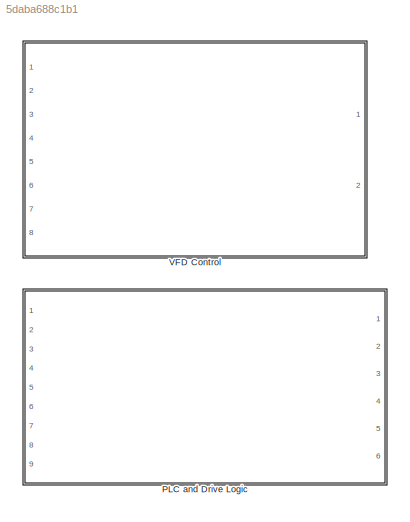
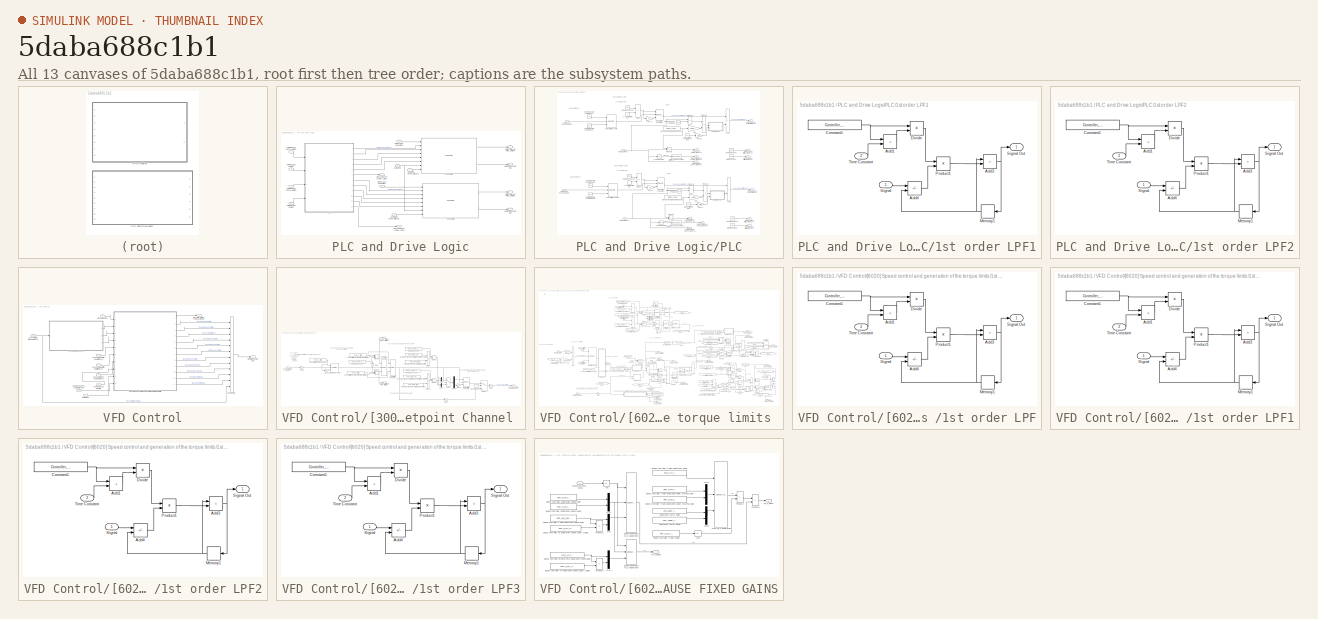
[diagram: thumbnail index - all 13 canvases of the model, root first then tree order]
MODEL slx_5daba688c1b1
KIND library
CONFIG AbsTol = auto
CONFIG EnableMultiTasking = off
CONFIG FixedStep = auto
CONFIG MaxStep = auto
CONFIG MinStep = auto
CONFIG RelTol = 1e-3
CONFIG SampleTimeConstraint = Unconstrained
CONFIG SolverName = VariableStepAuto
CONFIG StartTime = 0.0
CONFIG StopTime = 10.0
BLOCK [SubSystem] PLC and Drive Logic
  Ports = [9, 6]
  RequestExecContextInheritance = off
BLOCK [Inport] PLC and Drive Logic/HMI Motor 1 CSV Speed Setpoint (rpm)
BLOCK [Inport] PLC and Drive Logic/HMI Motor 1 Start Test [0...1]
  Port = 3
BLOCK [Inport] PLC and Drive Logic/HMI Motor 2 CSV Speed Setpoint (rpm)
  Port = 4
BLOCK [Inport] PLC and Drive Logic/HMI Motor 2 Start Test [0...1]
  Port = 5
BLOCK [Outport] PLC and Drive Logic/M1 [r0079] M_set total (Torque setpoint [Nm])
BLOCK [Outport] PLC and Drive Logic/M2 [r0079] M_set total (Torque setpoint [Nm])
  Port = 4
BLOCK [Inport] PLC and Drive Logic/Motor 1 Actual Speed (rpm)
  NameLocation = top
  Port = 2
BLOCK [Outport] PLC and Drive Logic/Motor 1 Diagnostics Bus
  Port = 3
BLOCK [Inport] PLC and Drive Logic/Motor 2 Actual Speed (rpm)
  NameLocation = top
  Port = 6
BLOCK [Outport] PLC and Drive Logic/Motor 2 Diagnostics Bus
  Port = 5
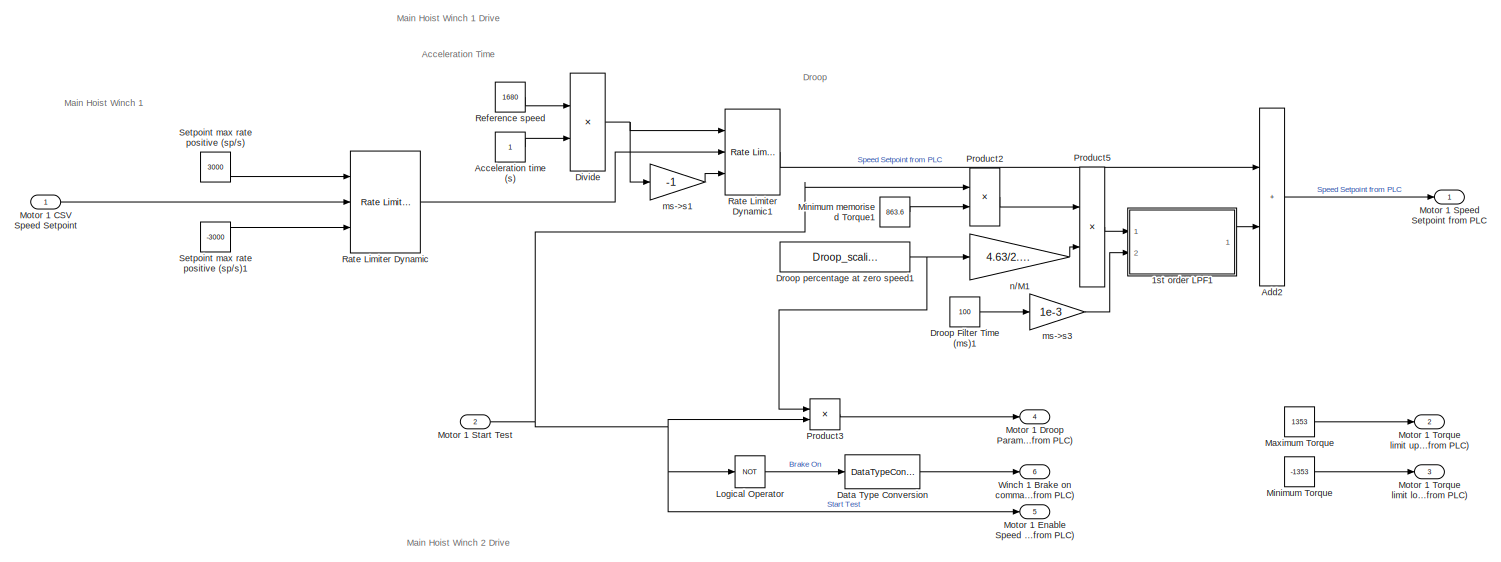
[diagram: PLC and Drive Logic/PLC - part 1/2, full width, top band]
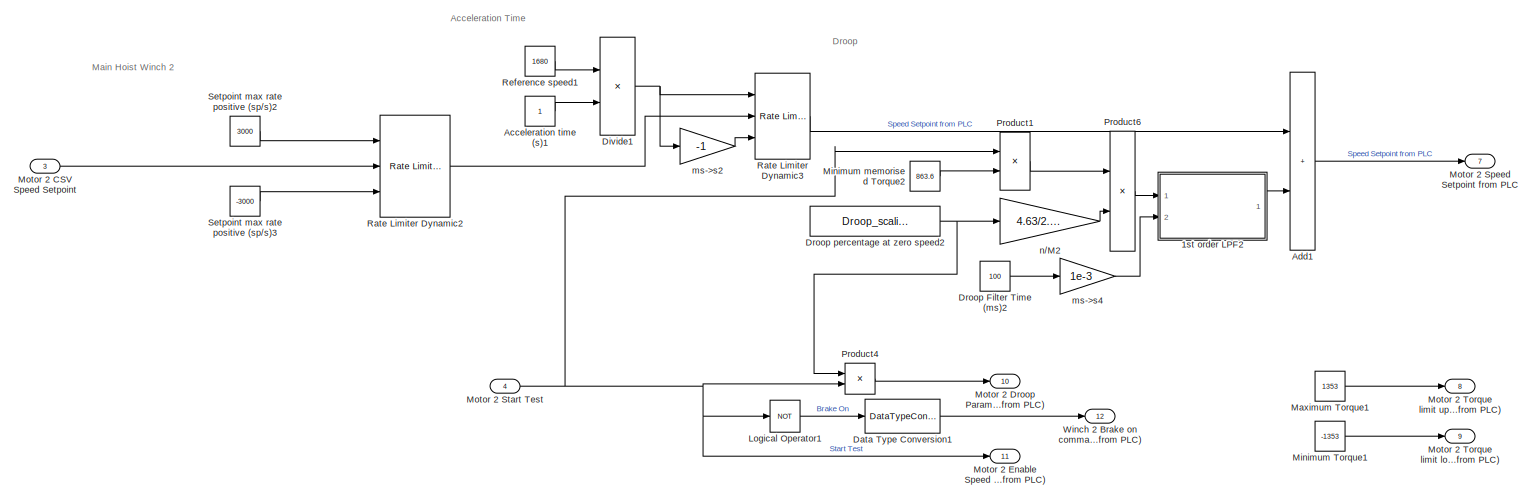
[diagram: PLC and Drive Logic/PLC - part 2/2, full width, bottom band]
BLOCK [SubSystem] PLC and Drive Logic/PLC
  Ports = [4, 12]
  RequestExecContextInheritance = off
  SystemSampleTime = Controller_sampleTime
  TreatAsAtomicUnit = on
BLOCK [SubSystem] PLC and Drive Logic/PLC/1st order LPF1
  Ports = [2, 1]
  RequestExecContextInheritance = off
BLOCK [Sum] PLC and Drive Logic/PLC/1st order LPF1/Add1
  IconShape = rectangular
  Ports = [2, 1]
BLOCK [Sum] PLC and Drive Logic/PLC/1st order LPF1/Add3
  IconShape = rectangular
  Ports = [2, 1]
BLOCK [Sum] PLC and Drive Logic/PLC/1st order LPF1/Add4
  IconShape = rectangular
  Inputs = +-
  Ports = [2, 1]
BLOCK [Constant] PLC and Drive Logic/PLC/1st order LPF1/Constant1
  Value = Controller_sampleTime
BLOCK [Product] PLC and Drive Logic/PLC/1st order LPF1/Divide
  Inputs = */
  Ports = [2, 1]
BLOCK [Memory] PLC and Drive Logic/PLC/1st order LPF1/Memory1
  InheritSampleTime = on
  InitialCondition = Yo
BLOCK [Product] PLC and Drive Logic/PLC/1st order LPF1/Product1
  Ports = [2, 1]
  RndMeth = Zero
BLOCK [Inport] PLC and Drive Logic/PLC/1st order LPF1/Signal
BLOCK [Outport] PLC and Drive Logic/PLC/1st order LPF1/Signal Out
  VectorParamsAs1DForOutWhenUnconnected = off
BLOCK [Inport] PLC and Drive Logic/PLC/1st order LPF1/Time Constant
  Port = 2
BLOCK [SubSystem] PLC and Drive Logic/PLC/1st order LPF2
  Ports = [2, 1]
  RequestExecContextInheritance = off
BLOCK [Sum] PLC and Drive Logic/PLC/1st order LPF2/Add1
  IconShape = rectangular
  Ports = [2, 1]
BLOCK [Sum] PLC and Drive Logic/PLC/1st order LPF2/Add3
  IconShape = rectangular
  Ports = [2, 1]
BLOCK [Sum] PLC and Drive Logic/PLC/1st order LPF2/Add4
  IconShape = rectangular
  Inputs = +-
  Ports = [2, 1]
BLOCK [Constant] PLC and Drive Logic/PLC/1st order LPF2/Constant1
  Value = Controller_sampleTime
BLOCK [Product] PLC and Drive Logic/PLC/1st order LPF2/Divide
  Inputs = */
  Ports = [2, 1]
BLOCK [Memory] PLC and Drive Logic/PLC/1st order LPF2/Memory1
  InheritSampleTime = on
  InitialCondition = Yo
BLOCK [Product] PLC and Drive Logic/PLC/1st order LPF2/Product1
  Ports = [2, 1]
  RndMeth = Zero
BLOCK [Inport] PLC and Drive Logic/PLC/1st order LPF2/Signal
BLOCK [Outport] PLC and Drive Logic/PLC/1st order LPF2/Signal Out
  VectorParamsAs1DForOutWhenUnconnected = off
BLOCK [Inport] PLC and Drive Logic/PLC/1st order LPF2/Time Constant
  Port = 2
BLOCK [Constant] PLC and Drive Logic/PLC/Acceleration time (s)
BLOCK [Constant] PLC and Drive Logic/PLC/Acceleration time (s)1
BLOCK [Sum] PLC and Drive Logic/PLC/Add1
  IconShape = rectangular
  Ports = [2, 1]
BLOCK [Sum] PLC and Drive Logic/PLC/Add2
  IconShape = rectangular
  Ports = [2, 1]
BLOCK [DataTypeConversion] PLC and Drive Logic/PLC/Data Type Conversion
  OutDataTypeStr = double
  RndMeth = Floor
  SaturateOnIntegerOverflow = off
BLOCK [DataTypeConversion] PLC and Drive Logic/PLC/Data Type Conversion1
  OutDataTypeStr = double
  RndMeth = Floor
  SaturateOnIntegerOverflow = off
BLOCK [Product] PLC and Drive Logic/PLC/Divide
  Inputs = */
  Ports = [2, 1]
BLOCK [Product] PLC and Drive Logic/PLC/Divide1
  Inputs = */
  Ports = [2, 1]
BLOCK [Constant] PLC and Drive Logic/PLC/Droop Filter Time (ms)1
  Value = 100
BLOCK [Constant] PLC and Drive Logic/PLC/Droop Filter Time (ms)2
  Value = 100
BLOCK [Constant] PLC and Drive Logic/PLC/Droop percentage at zero speed1
  Value = Droop_scaling
BLOCK [Constant] PLC and Drive Logic/PLC/Droop percentage at zero speed2
  Value = Droop_scaling
BLOCK [Logic] PLC and Drive Logic/PLC/Logical Operator
  AllPortsSameDT = off
  Operator = NOT
  OutDataTypeStr = boolean
  Ports = [1, 1]
BLOCK [Logic] PLC and Drive Logic/PLC/Logical Operator1
  AllPortsSameDT = off
  Operator = NOT
  OutDataTypeStr = boolean
  Ports = [1, 1]
BLOCK [Constant] PLC and Drive Logic/PLC/Maximum Torque
  Value = 1353
BLOCK [Constant] PLC and Drive Logic/PLC/Maximum Torque1
  Value = 1353
BLOCK [Constant] PLC and Drive Logic/PLC/Minimum Torque
  Value = -1353
BLOCK [Constant] PLC and Drive Logic/PLC/Minimum Torque1
  Value = -1353
BLOCK [Constant] PLC and Drive Logic/PLC/Minimum memorised Torque1
  Value = 863.6
BLOCK [Constant] PLC and Drive Logic/PLC/Minimum memorised Torque2
  Value = 863.6
BLOCK [Inport] PLC and Drive Logic/PLC/Motor 1 CSV Speed Setpoint
BLOCK [Outport] PLC and Drive Logic/PLC/Motor 1 Droop Parameter (from PLC)
  Port = 4
BLOCK [Outport] PLC and Drive Logic/PLC/Motor 1 Enable Speed Setpoint (from PLC)
  Port = 5
BLOCK [Outport] PLC and Drive Logic/PLC/Motor 1 Speed Setpoint from PLC
BLOCK [Inport] PLC and Drive Logic/PLC/Motor 1 Start Test
  Port = 2
BLOCK [Outport] PLC and Drive Logic/PLC/Motor 1 Torque limit lower (from PLC)
  Port = 3
BLOCK [Outport] PLC and Drive Logic/PLC/Motor 1 Torque limit upper (from PLC)
  Port = 2
BLOCK [Inport] PLC and Drive Logic/PLC/Motor 2 CSV Speed Setpoint
  Port = 3
BLOCK [Outport] PLC and Drive Logic/PLC/Motor 2 Droop Parameter (from PLC)
  Port = 10
BLOCK [Outport] PLC and Drive Logic/PLC/Motor 2 Enable Speed Setpoint (from PLC)
  Port = 11
BLOCK [Outport] PLC and Drive Logic/PLC/Motor 2 Speed Setpoint from PLC
  Port = 7
BLOCK [Inport] PLC and Drive Logic/PLC/Motor 2 Start Test
  Port = 4
BLOCK [Outport] PLC and Drive Logic/PLC/Motor 2 Torque limit lower (from PLC)
  Port = 9
BLOCK [Outport] PLC and Drive Logic/PLC/Motor 2 Torque limit upper (from PLC)
  Port = 8
BLOCK [Product] PLC and Drive Logic/PLC/Product1
  Inputs = **
  Ports = [2, 1]
BLOCK [Product] PLC and Drive Logic/PLC/Product2
  Inputs = **
  Ports = [2, 1]
BLOCK [Product] PLC and Drive Logic/PLC/Product3
  Ports = [2, 1]
BLOCK [Product] PLC and Drive Logic/PLC/Product4
  Ports = [2, 1]
BLOCK [Product] PLC and Drive Logic/PLC/Product5
  Inputs = **
  Ports = [2, 1]
BLOCK [Product] PLC and Drive Logic/PLC/Product6
  Inputs = **
  Ports = [2, 1]
BLOCK [Reference] PLC and Drive Logic/PLC/Rate Limiter Dynamic  REF=simulink/Discontinuities/Rate Limiter
Dynamic
  NameLocation = top
  Ports = [3, 1]
  SourceBlock = simulink/Discontinuities/Rate Limiter\nDynamic
  SourceProductBaseCode = SL
  SourceType = Rate Limiter Dynamic
BLOCK [Reference] PLC and Drive Logic/PLC/Rate Limiter Dynamic1  REF=simulink/Discontinuities/Rate Limiter
Dynamic
  Ports = [3, 1]
  SourceBlock = simulink/Discontinuities/Rate Limiter\nDynamic
  SourceProductBaseCode = SL
  SourceType = Rate Limiter Dynamic
BLOCK [Reference] PLC and Drive Logic/PLC/Rate Limiter Dynamic2  REF=simulink/Discontinuities/Rate Limiter
Dynamic
  NameLocation = top
  Ports = [3, 1]
  SourceBlock = simulink/Discontinuities/Rate Limiter\nDynamic
  SourceProductBaseCode = SL
  SourceType = Rate Limiter Dynamic
BLOCK [Reference] PLC and Drive Logic/PLC/Rate Limiter Dynamic3  REF=simulink/Discontinuities/Rate Limiter
Dynamic
  Ports = [3, 1]
  SourceBlock = simulink/Discontinuities/Rate Limiter\nDynamic
  SourceProductBaseCode = SL
  SourceType = Rate Limiter Dynamic
BLOCK [Constant] PLC and Drive Logic/PLC/Reference speed
  Value = 1680
BLOCK [Constant] PLC and Drive Logic/PLC/Reference speed1
  Value = 1680
BLOCK [Constant] PLC and Drive Logic/PLC/Setpoint max rate positive (sp//s)
  Value = 3000
BLOCK [Constant] PLC and Drive Logic/PLC/Setpoint max rate positive (sp//s)1
  Value = -3000
BLOCK [Constant] PLC and Drive Logic/PLC/Setpoint max rate positive (sp//s)2
  Value = 3000
BLOCK [Constant] PLC and Drive Logic/PLC/Setpoint max rate positive (sp//s)3
  Value = -3000
BLOCK [Outport] PLC and Drive Logic/PLC/Winch 1 Brake on command (from PLC)
  Port = 6
BLOCK [Outport] PLC and Drive Logic/PLC/Winch 2 Brake on command (from PLC)
  Port = 12
BLOCK [Gain] PLC and Drive Logic/PLC/ms->s1
  Gain = -1
BLOCK [Gain] PLC and Drive Logic/PLC/ms->s2
  Gain = -1
BLOCK [Gain] PLC and Drive Logic/PLC/ms->s3
  Gain = 1e-3
BLOCK [Gain] PLC and Drive Logic/PLC/ms->s4
  Gain = 1e-3
BLOCK [Gain] PLC and Drive Logic/PLC/n//M1
  Gain = 4.63/2.52982
BLOCK [Gain] PLC and Drive Logic/PLC/n//M2
  Gain = 4.63/2.52982
BLOCK [Reference] PLC and Drive Logic/VFD Control1  REF=$bdroot/VFD Control
  Ports = [8, 2]
  SourceBlock = $bdroot/VFD Control
  SourceType = SubSystem
BLOCK [Reference] PLC and Drive Logic/VFD Control2  REF=$bdroot/VFD Control
  Ports = [8, 2]
  SourceBlock = $bdroot/VFD Control
  SourceType = SubSystem
BLOCK [Inport] PLC and Drive Logic/WAB Mode
  Port = 7
BLOCK [Inport] PLC and Drive Logic/WAB Motor 1 Speed_Controller Setpoint (r1438)
  Port = 8
BLOCK [Inport] PLC and Drive Logic/WAB Motor 2 Speed_Controller Setpoint (r1438)
  Port = 9
BLOCK [Outport] PLC and Drive Logic/Winch 1 brake on command (from PLC) [0...1]
  Port = 2
BLOCK [Outport] PLC and Drive Logic/Winch 2 brake on command (from PLC) [0...1]
  Port = 6
BLOCK [SubSystem] VFD Control
  Ports = [8, 2]
  RequestExecContextInheritance = off
  SystemSampleTime = Controller_sampleTime
  TreatAsAtomicUnit = on
BLOCK [BusCreator] VFD Control/Bus Creator
  DisplayOption = bar
  InheritFromInputs = on
  Inputs = 12
  Ports = [12, 1]
BLOCK [Inport] VFD Control/Enable Speed Controller
  Port = 6
BLOCK [Inport] VFD Control/Measured RPM
  NameLocation = top
BLOCK [Outport] VFD Control/Motor Diagnostics Bus
  Port = 2
BLOCK [Inport] VFD Control/WAB Mode
  Port = 7
BLOCK [Inport] VFD Control/WAB Mode Speed_Controller Setpoint (r1438)
  Port = 8
BLOCK [SubSystem] VFD Control/[3001] Setpoint Channel 
  Ports = [1, 3]
  RequestExecContextInheritance = off
BLOCK [Demux] VFD Control/[3001] Setpoint Channel /Demux
  Outputs = 2
  Ports = [1, 2]
BLOCK [Product] VFD Control/[3001] Setpoint Channel /Divide
  Inputs = **
  Ports = [2, 1]
BLOCK [Product] VFD Control/[3001] Setpoint Channel /Divide1
  Inputs = */
  Ports = [2, 1]
BLOCK [Product] VFD Control/[3001] Setpoint Channel /Divide2
  Inputs = **
  Ports = [2, 1]
BLOCK [Product] VFD Control/[3001] Setpoint Channel /Divide3
  Inputs = */
  Ports = [2, 1]
BLOCK [Gain] VFD Control/[3001] Setpoint Channel /Gain1
  Gain = -1
BLOCK [Gain] VFD Control/[3001] Setpoint Channel /Gain2
  Gain = -1
  NameLocation = left
BLOCK [Gain] VFD Control/[3001] Setpoint Channel /Gain3
BLOCK [Gain] VFD Control/[3001] Setpoint Channel /Gain4
BLOCK [Gain] VFD Control/[3001] Setpoint Channel /Gain5
BLOCK [Gain] VFD Control/[3001] Setpoint Channel /Gain6
  Gain = -1
BLOCK [Constant] VFD Control/[3001] Setpoint Channel /Maximum speed
  Value = VFD_n_max_p1082
BLOCK [Constant] VFD Control/[3001] Setpoint Channel /Maximum speed1
  Value = VFD_n_max_p1082
BLOCK [Constant] VFD Control/[3001] Setpoint Channel /Maximum speed2
BLOCK [Constant] VFD Control/[3001] Setpoint Channel /Maximum speed3
  Value = VFD_n_max_p1082
BLOCK [MinMax] VFD Control/[3001] Setpoint Channel /MinMax
  Inputs = 3
  Ports = [3, 1]
BLOCK [MinMax] VFD Control/[3001] Setpoint Channel /MinMax1
  Function = max
  Inputs = 3
  Ports = [3, 1]
BLOCK [Mux] VFD Control/[3001] Setpoint Channel /Mux
  DisplayOption = bar
  Inputs = 2
  Ports = [2, 1]
BLOCK [Mux] VFD Control/[3001] Setpoint Channel /Mux1
  DisplayOption = bar
  Inputs = 2
  Ports = [2, 1]
BLOCK [Constant] VFD Control/[3001] Setpoint Channel /Ramp-function generator ramp-down time
  Value = VFD_RFG_ramp_down_time_p1121
BLOCK [Constant] VFD Control/[3001] Setpoint Channel /Ramp-function generator ramp-down time scaling
  Value = VFD_RFG_t_RD_scal_p1139
  VectorParams1D = off
BLOCK [Constant] VFD Control/[3001] Setpoint Channel /Ramp-function generator ramp-up time 
  Value = VFD_RFG_ramp_up_time_p1120
BLOCK [Constant] VFD Control/[3001] Setpoint Channel /Ramp-function generator ramp-up time scaling 
  Value = VFD_RFG_t_RU_scal_p1138
BLOCK [Reference] VFD Control/[3001] Setpoint Channel /Rate Limiter Dynamic  REF=simulink/Discontinuities/Rate Limiter
Dynamic
  Ports = [3, 1]
  SourceBlock = simulink/Discontinuities/Rate Limiter\nDynamic
  SourceProductBaseCode = SL
  SourceType = Rate Limiter Dynamic
BLOCK [Reference] VFD Control/[3001] Setpoint Channel /Saturation Dynamic  REF=simulink/Discontinuities/Saturation
Dynamic
  Ports = [3, 1]
  SourceBlock = simulink/Discontinuities/Saturation\nDynamic
  SourceProductBaseCode = SL
  SourceType = Saturation Dynamic
BLOCK [Reference] VFD Control/[3001] Setpoint Channel /Saturation Dynamic1  REF=simulink/Discontinuities/Saturation
Dynamic
  Ports = [3, 1]
  SourceBlock = simulink/Discontinuities/Saturation\nDynamic
  SourceProductBaseCode = SL
  SourceType = Saturation Dynamic
BLOCK [Reference] VFD Control/[3001] Setpoint Channel /Saturation Dynamic2  REF=simulink/Discontinuities/Saturation
Dynamic
  Ports = [3, 1]
  SourceBlock = simulink/Discontinuities/Saturation\nDynamic
  SourceProductBaseCode = SL
  SourceType = Saturation Dynamic
BLOCK [Constant] VFD Control/[3001] Setpoint Channel /Speed limit in negative direction of rotation 
  Value = VFD_n_limit_neg_p1086
BLOCK [Constant] VFD Control/[3001] Setpoint Channel /Speed limit in positive direction of rotation
  Value = VFD_n_limit_pos_p1083
BLOCK [Constant] VFD Control/[3001] Setpoint Channel /Speed limit setpoint channel
  Value = VFD_n_limit_setp_p1063
BLOCK [Switch] VFD Control/[3001] Setpoint Channel /Switch
  Criteria = u2 > Threshold
  InputSameDT = off
  SaturateOnIntegerOverflow = off
BLOCK [Switch] VFD Control/[3001] Setpoint Channel /Switch1
  Criteria = u2 > Threshold
  InputSameDT = off
  SaturateOnIntegerOverflow = off
BLOCK [Inport] VFD Control/[3001] Setpoint Channel /[p1070(0)] Main Setpoint
BLOCK [Outport] VFD Control/[3001] Setpoint Channel /[r1084] n_limit pos eff Positive Speed limit (rpm)
  NameLocation = top
  Port = 2
  VectorParamsAs1DForOutWhenUnconnected = off
BLOCK [Outport] VFD Control/[3001] Setpoint Channel /[r1087] n_limit neg eff Negative Speed limit (rpm)
  Port = 3
  VectorParamsAs1DForOutWhenUnconnected = off
BLOCK [Outport] VFD Control/[3001] Setpoint Channel /[r1170] n_ctrl setp sum (Speed setpoint after the RFG)
  VectorParamsAs1DForOutWhenUnconnected = off
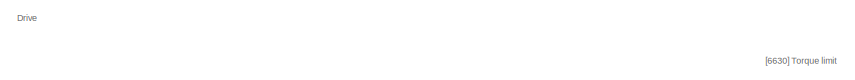
[diagram: VFD Control/[6020] Speed control and generation of the torque limits  - part 1/3, top left region]
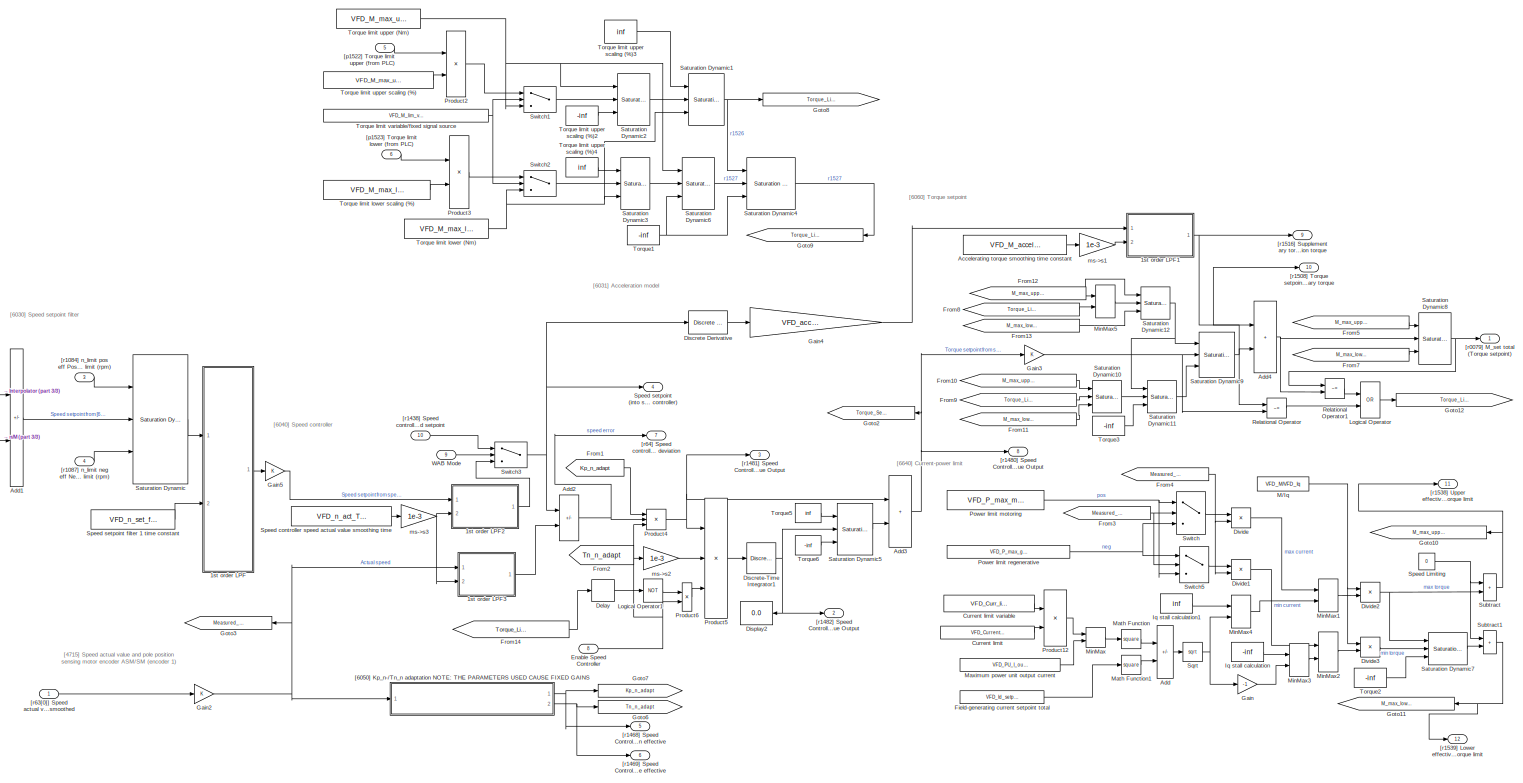
[diagram: VFD Control/[6020] Speed control and generation of the torque limits  - part 2/3, most of the canvas]
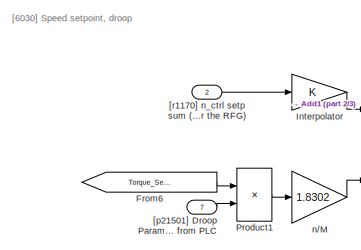
[diagram: VFD Control/[6020] Speed control and generation of the torque limits  - part 3/3, middle left region]
BLOCK [SubSystem] VFD Control/[6020] Speed control and generation of the torque limits 
  Ports = [10, 12]
  RequestExecContextInheritance = off
BLOCK [SubSystem] VFD Control/[6020] Speed control and generation of the torque limits /1st order LPF
  Ports = [2, 1]
  RequestExecContextInheritance = off
BLOCK [Sum] VFD Control/[6020] Speed control and generation of the torque limits /1st order LPF/Add1
  IconShape = rectangular
  Ports = [2, 1]
BLOCK [Sum] VFD Control/[6020] Speed control and generation of the torque limits /1st order LPF/Add3
  IconShape = rectangular
  Ports = [2, 1]
BLOCK [Sum] VFD Control/[6020] Speed control and generation of the torque limits /1st order LPF/Add4
  IconShape = rectangular
  Inputs = +-
  Ports = [2, 1]
BLOCK [Constant] VFD Control/[6020] Speed control and generation of the torque limits /1st order LPF/Constant1
  Value = Controller_sampleTime
BLOCK [Product] VFD Control/[6020] Speed control and generation of the torque limits /1st order LPF/Divide
  Inputs = */
  Ports = [2, 1]
BLOCK [Memory] VFD Control/[6020] Speed control and generation of the torque limits /1st order LPF/Memory1
  InheritSampleTime = on
  InitialCondition = Yo
BLOCK [Product] VFD Control/[6020] Speed control and generation of the torque limits /1st order LPF/Product1
  Ports = [2, 1]
  RndMeth = Zero
BLOCK [Inport] VFD Control/[6020] Speed control and generation of the torque limits /1st order LPF/Signal
BLOCK [Outport] VFD Control/[6020] Speed control and generation of the torque limits /1st order LPF/Signal Out
  VectorParamsAs1DForOutWhenUnconnected = off
BLOCK [Inport] VFD Control/[6020] Speed control and generation of the torque limits /1st order LPF/Time Constant
  Port = 2
BLOCK [SubSystem] VFD Control/[6020] Speed control and generation of the torque limits /1st order LPF1
  Ports = [2, 1]
  RequestExecContextInheritance = off
BLOCK [Sum] VFD Control/[6020] Speed control and generation of the torque limits /1st order LPF1/Add1
  IconShape = rectangular
  Ports = [2, 1]
BLOCK [Sum] VFD Control/[6020] Speed control and generation of the torque limits /1st order LPF1/Add3
  IconShape = rectangular
  Ports = [2, 1]
BLOCK [Sum] VFD Control/[6020] Speed control and generation of the torque limits /1st order LPF1/Add4
  IconShape = rectangular
  Inputs = +-
  Ports = [2, 1]
BLOCK [Constant] VFD Control/[6020] Speed control and generation of the torque limits /1st order LPF1/Constant1
  Value = Controller_sampleTime
BLOCK [Product] VFD Control/[6020] Speed control and generation of the torque limits /1st order LPF1/Divide
  Inputs = */
  Ports = [2, 1]
BLOCK [Memory] VFD Control/[6020] Speed control and generation of the torque limits /1st order LPF1/Memory1
  InheritSampleTime = on
  InitialCondition = Yo
BLOCK [Product] VFD Control/[6020] Speed control and generation of the torque limits /1st order LPF1/Product1
  Ports = [2, 1]
  RndMeth = Zero
BLOCK [Inport] VFD Control/[6020] Speed control and generation of the torque limits /1st order LPF1/Signal
BLOCK [Outport] VFD Control/[6020] Speed control and generation of the torque limits /1st order LPF1/Signal Out
  VectorParamsAs1DForOutWhenUnconnected = off
BLOCK [Inport] VFD Control/[6020] Speed control and generation of the torque limits /1st order LPF1/Time Constant
  Port = 2
BLOCK [SubSystem] VFD Control/[6020] Speed control and generation of the torque limits /1st order LPF2
  Ports = [2, 1]
  RequestExecContextInheritance = off
BLOCK [Sum] VFD Control/[6020] Speed control and generation of the torque limits /1st order LPF2/Add1
  IconShape = rectangular
  Ports = [2, 1]
BLOCK [Sum] VFD Control/[6020] Speed control and generation of the torque limits /1st order LPF2/Add3
  IconShape = rectangular
  Ports = [2, 1]
BLOCK [Sum] VFD Control/[6020] Speed control and generation of the torque limits /1st order LPF2/Add4
  IconShape = rectangular
  Inputs = +-
  Ports = [2, 1]
BLOCK [Constant] VFD Control/[6020] Speed control and generation of the torque limits /1st order LPF2/Constant1
  Value = Controller_sampleTime
BLOCK [Product] VFD Control/[6020] Speed control and generation of the torque limits /1st order LPF2/Divide
  Inputs = */
  Ports = [2, 1]
BLOCK [Memory] VFD Control/[6020] Speed control and generation of the torque limits /1st order LPF2/Memory1
  InheritSampleTime = on
  InitialCondition = Yo
BLOCK [Product] VFD Control/[6020] Speed control and generation of the torque limits /1st order LPF2/Product1
  Ports = [2, 1]
  RndMeth = Zero
BLOCK [Inport] VFD Control/[6020] Speed control and generation of the torque limits /1st order LPF2/Signal
BLOCK [Outport] VFD Control/[6020] Speed control and generation of the torque limits /1st order LPF2/Signal Out
  VectorParamsAs1DForOutWhenUnconnected = off
BLOCK [Inport] VFD Control/[6020] Speed control and generation of the torque limits /1st order LPF2/Time Constant
  Port = 2
BLOCK [SubSystem] VFD Control/[6020] Speed control and generation of the torque limits /1st order LPF3
  Ports = [2, 1]
  RequestExecContextInheritance = off
BLOCK [Sum] VFD Control/[6020] Speed control and generation of the torque limits /1st order LPF3/Add1
  IconShape = rectangular
  Ports = [2, 1]
BLOCK [Sum] VFD Control/[6020] Speed control and generation of the torque limits /1st order LPF3/Add3
  IconShape = rectangular
  Ports = [2, 1]
BLOCK [Sum] VFD Control/[6020] Speed control and generation of the torque limits /1st order LPF3/Add4
  IconShape = rectangular
  Inputs = +-
  Ports = [2, 1]
BLOCK [Constant] VFD Control/[6020] Speed control and generation of the torque limits /1st order LPF3/Constant1
  Value = Controller_sampleTime
BLOCK [Product] VFD Control/[6020] Speed control and generation of the torque limits /1st order LPF3/Divide
  Inputs = */
  Ports = [2, 1]
BLOCK [Memory] VFD Control/[6020] Speed control and generation of the torque limits /1st order LPF3/Memory1
  InheritSampleTime = on
  InitialCondition = Yo
BLOCK [Product] VFD Control/[6020] Speed control and generation of the torque limits /1st order LPF3/Product1
  Ports = [2, 1]
  RndMeth = Zero
BLOCK [Inport] VFD Control/[6020] Speed control and generation of the torque limits /1st order LPF3/Signal
BLOCK [Outport] VFD Control/[6020] Speed control and generation of the torque limits /1st order LPF3/Signal Out
  VectorParamsAs1DForOutWhenUnconnected = off
BLOCK [Inport] VFD Control/[6020] Speed control and generation of the torque limits /1st order LPF3/Time Constant
  Port = 2
BLOCK [Constant] VFD Control/[6020] Speed control and generation of the torque limits /Accelerating torque smoothing time constant
  Value = VFD_M_accel_T_smooth_p1517
BLOCK [Sum] VFD Control/[6020] Speed control and generation of the torque limits /Add
  IconShape = rectangular
  Inputs = +-
  Ports = [2, 1]
BLOCK [Sum] VFD Control/[6020] Speed control and generation of the torque limits /Add1
  IconShape = rectangular
  Inputs = +-
  Ports = [2, 1]
BLOCK [Sum] VFD Control/[6020] Speed control and generation of the torque limits /Add2
  IconShape = rectangular
  Inputs = +-
  Ports = [2, 1]
BLOCK [Sum] VFD Control/[6020] Speed control and generation of the torque limits /Add3
  IconShape = rectangular
  Ports = [2, 1]
BLOCK [Sum] VFD Control/[6020] Speed control and generation of the torque limits /Add4
  IconShape = rectangular
  Ports = [2, 1]
BLOCK [Constant] VFD Control/[6020] Speed control and generation of the torque limits /Current limit
  Value = VFD_Current_limit_p0640
BLOCK [Constant] VFD Control/[6020] Speed control and generation of the torque limits /Current limit variable
  Value = VFD_Curr_limit_var_p0641
BLOCK [Delay] VFD Control/[6020] Speed control and generation of the torque limits /Delay
  DelayLength = 1
  InputPortMap = u0
  Ports = [1, 1]
BLOCK [Reference] VFD Control/[6020] Speed control and generation of the torque limits /Discrete Derivative  REF=simulink/Discrete/Discrete Derivative
  Ports = [1, 1]
  SourceBlock = simulink/Discrete/Discrete Derivative
  SourceProductBaseCode = SL
  SourceType = Discrete Derivative
BLOCK [DiscreteIntegrator] VFD Control/[6020] Speed control and generation of the torque limits /Discrete-Time Integrator1
  ICPrevOutput = DiscIntNeverNeededParam
  ICPrevScaledInput = DiscIntNeverNeededParam
  Ports = [1, 1]
  SampleTime = 0.001
BLOCK [Display] VFD Control/[6020] Speed control and generation of the torque limits /Display2
  Decimation = 1
  NameLocation = top
  Ports = [1]
BLOCK [Product] VFD Control/[6020] Speed control and generation of the torque limits /Divide
  Inputs = */
  Ports = [2, 1]
BLOCK [Product] VFD Control/[6020] Speed control and generation of the torque limits /Divide1
  Inputs = */
  Ports = [2, 1]
BLOCK [Product] VFD Control/[6020] Speed control and generation of the torque limits /Divide2
  Inputs = **
  Ports = [2, 1]
BLOCK [Product] VFD Control/[6020] Speed control and generation of the torque limits /Divide3
  Inputs = **
  Ports = [2, 1]
BLOCK [Inport] VFD Control/[6020] Speed control and generation of the torque limits /Enable Speed Controller
  Port = 8
BLOCK [Constant] VFD Control/[6020] Speed control and generation of the torque limits /Field-generating current setpoint total
  Value = VFD_Id_setp_total_r1624
BLOCK [From] VFD Control/[6020] Speed control and generation of the torque limits /From1
  GotoTag = Kp_n_adapt
BLOCK [From] VFD Control/[6020] Speed control and generation of the torque limits /From10
  GotoTag = M_max_upper_effective_r1538
BLOCK [From] VFD Control/[6020] Speed control and generation of the torque limits /From11
  GotoTag = M_max_lower_effective_r1539
BLOCK [From] VFD Control/[6020] Speed control and generation of the torque limits /From12
  GotoTag = M_max_upper_effective_r1538
BLOCK [From] VFD Control/[6020] Speed control and generation of the torque limits /From13
  GotoTag = M_max_lower_effective_r1539
BLOCK [From] VFD Control/[6020] Speed control and generation of the torque limits /From14
  GotoTag = Torque_Limit_Reached_r1407_7
BLOCK [From] VFD Control/[6020] Speed control and generation of the torque limits /From2
  GotoTag = Tn_n_adapt
BLOCK [From] VFD Control/[6020] Speed control and generation of the torque limits /From3
  GotoTag = Measured_RPM_r0063
BLOCK [From] VFD Control/[6020] Speed control and generation of the torque limits /From4
  GotoTag = Measured_RPM_r0063
BLOCK [From] VFD Control/[6020] Speed control and generation of the torque limits /From5
  GotoTag = M_max_upper_effective_r1538
BLOCK [From] VFD Control/[6020] Speed control and generation of the torque limits /From6
  GotoTag = Torque_Setpoint_Nm
  NameLocation = top
BLOCK [From] VFD Control/[6020] Speed control and generation of the torque limits /From7
  GotoTag = M_max_lower_effective_r1539
BLOCK [From] VFD Control/[6020] Speed control and generation of the torque limits /From8
  GotoTag = Torque_Limit_Upper_r1526
BLOCK [From] VFD Control/[6020] Speed control and generation of the torque limits /From9
  GotoTag = Torque_Limit_Lower_r1527
BLOCK [Gain] VFD Control/[6020] Speed control and generation of the torque limits /Gain
  Gain = -1
BLOCK [Gain] VFD Control/[6020] Speed control and generation of the torque limits /Gain2
BLOCK [Gain] VFD Control/[6020] Speed control and generation of the torque limits /Gain3
BLOCK [Gain] VFD Control/[6020] Speed control and generation of the torque limits /Gain4
  Gain = VFD_acceleration_model_factor
BLOCK [Gain] VFD Control/[6020] Speed control and generation of the torque limits /Gain5
BLOCK [Goto] VFD Control/[6020] Speed control and generation of the torque limits /Goto10
  GotoTag = M_max_upper_effective_r1538
  NameLocation = top
BLOCK [Goto] VFD Control/[6020] Speed control and generation of the torque limits /Goto11
  GotoTag = M_max_lower_effective_r1539
  NameLocation = top
BLOCK [Goto] VFD Control/[6020] Speed control and generation of the torque limits /Goto12
  GotoTag = Torque_Limit_Reached_r1407_7
BLOCK [Goto] VFD Control/[6020] Speed control and generation of the torque limits /Goto2
  GotoTag = Torque_Setpoint_Nm
  NameLocation = top
BLOCK [Goto] VFD Control/[6020] Speed control and generation of the torque limits /Goto3
  GotoTag = Measured_RPM_r0063
  NameLocation = top
BLOCK [Goto] VFD Control/[6020] Speed control and generation of the torque limits /Goto6
  GotoTag = Tn_n_adapt
BLOCK [Goto] VFD Control/[6020] Speed control and generation of the torque limits /Goto7
  GotoTag = Kp_n_adapt
BLOCK [Goto] VFD Control/[6020] Speed control and generation of the torque limits /Goto8
  GotoTag = Torque_Limit_Upper_r1526
BLOCK [Goto] VFD Control/[6020] Speed control and generation of the torque limits /Goto9
  GotoTag = Torque_Limit_Lower_r1527
  NameLocation = top
BLOCK [Gain] VFD Control/[6020] Speed control and generation of the torque limits /Interpolator
BLOCK [Constant] VFD Control/[6020] Speed control and generation of the torque limits /Iq stall calculation
  Value = -inf
BLOCK [Constant] VFD Control/[6020] Speed control and generation of the torque limits /Iq stall calculation1
  Value = inf
BLOCK [Logic] VFD Control/[6020] Speed control and generation of the torque limits /Logical Operator
  AllPortsSameDT = off
  Operator = OR
  OutDataTypeStr = boolean
  Ports = [2, 1]
BLOCK [Logic] VFD Control/[6020] Speed control and generation of the torque limits /Logical Operator1
  AllPortsSameDT = off
  Operator = NOT
  OutDataTypeStr = boolean
  Ports = [1, 1]
BLOCK [Constant] VFD Control/[6020] Speed control and generation of the torque limits /M//Iq
  Value = VFD_M/VFD_Iq
BLOCK [Math] VFD Control/[6020] Speed control and generation of the torque limits /Math Function
  Operator = square
  Ports = [1, 1]
BLOCK [Math] VFD Control/[6020] Speed control and generation of the torque limits /Math Function1
  Operator = square
  Ports = [1, 1]
BLOCK [Constant] VFD Control/[6020] Speed control and generation of the torque limits /Maximum power unit output current
  Value = VFD_PU_I_outp_max_r0289
BLOCK [MinMax] VFD Control/[6020] Speed control and generation of the torque limits /MinMax
  Inputs = 2
  Ports = [2, 1]
BLOCK [MinMax] VFD Control/[6020] Speed control and generation of the torque limits /MinMax1
  Inputs = 2
  Ports = [2, 1]
BLOCK [MinMax] VFD Control/[6020] Speed control and generation of the torque limits /MinMax2
  Function = max
  Inputs = 2
  Ports = [2, 1]
BLOCK [MinMax] VFD Control/[6020] Speed control and generation of the torque limits /MinMax3
  Function = max
  Inputs = 2
  Ports = [2, 1]
BLOCK [MinMax] VFD Control/[6020] Speed control and generation of the torque limits /MinMax4
  Inputs = 2
  Ports = [2, 1]
BLOCK [MinMax] VFD Control/[6020] Speed control and generation of the torque limits /MinMax5
  Inputs = 2
  Ports = [2, 1]
BLOCK [Constant] VFD Control/[6020] Speed control and generation of the torque limits /Power limit motoring
  Value = VFD_P_max_mot_p1530
BLOCK [Constant] VFD Control/[6020] Speed control and generation of the torque limits /Power limit regenerative
  Value = VFD_P_max_gen_p1531
BLOCK [Product] VFD Control/[6020] Speed control and generation of the torque limits /Product1
  Inputs = **
  Ports = [2, 1]
BLOCK [Product] VFD Control/[6020] Speed control and generation of the torque limits /Product12
  Ports = [2, 1]
BLOCK [Product] VFD Control/[6020] Speed control and generation of the torque limits /Product2
  Ports = [2, 1]
BLOCK [Product] VFD Control/[6020] Speed control and generation of the torque limits /Product3
  Ports = [2, 1]
BLOCK [Product] VFD Control/[6020] Speed control and generation of the torque limits /Product4
  Inputs = 3
  Ports = [3, 1]
BLOCK [Product] VFD Control/[6020] Speed control and generation of the torque limits /Product5
  Inputs = */*
  Ports = [3, 1]
BLOCK [Product] VFD Control/[6020] Speed control and generation of the torque limits /Product6
  Inputs = **
  Ports = [2, 1]
BLOCK [RelationalOperator] VFD Control/[6020] Speed control and generation of the torque limits /Relational Operator
  InputSameDT = off
  Operator = ~=
  OutDataTypeStr = boolean
  Ports = [2, 1]
  RndMeth = Simplest
BLOCK [RelationalOperator] VFD Control/[6020] Speed control and generation of the torque limits /Relational Operator1
  InputSameDT = off
  Operator = ~=
  OutDataTypeStr = boolean
  Ports = [2, 1]
  RndMeth = Simplest
BLOCK [Reference] VFD Control/[6020] Speed control and generation of the torque limits /Saturation Dynamic  REF=simulink/Discontinuities/Saturation
Dynamic
  Ports = [3, 1]
  SourceBlock = simulink/Discontinuities/Saturation\nDynamic
  SourceProductBaseCode = SL
  SourceType = Saturation Dynamic
BLOCK [Reference] VFD Control/[6020] Speed control and generation of the torque limits /Saturation Dynamic1  REF=simulink/Discontinuities/Saturation
Dynamic
  Ports = [3, 1]
  SourceBlock = simulink/Discontinuities/Saturation\nDynamic
  SourceProductBaseCode = SL
  SourceType = Saturation Dynamic
BLOCK [Reference] VFD Control/[6020] Speed control and generation of the torque limits /Saturation Dynamic10  REF=simulink/Discontinuities/Saturation
Dynamic
  Ports = [3, 1]
  SourceBlock = simulink/Discontinuities/Saturation\nDynamic
  SourceProductBaseCode = SL
  SourceType = Saturation Dynamic
BLOCK [Reference] VFD Control/[6020] Speed control and generation of the torque limits /Saturation Dynamic11  REF=simulink/Discontinuities/Saturation
Dynamic
  Ports = [3, 1]
  SourceBlock = simulink/Discontinuities/Saturation\nDynamic
  SourceProductBaseCode = SL
  SourceType = Saturation Dynamic
BLOCK [Reference] VFD Control/[6020] Speed control and generation of the torque limits /Saturation Dynamic12  REF=simulink/Discontinuities/Saturation
Dynamic
  Ports = [3, 1]
  SourceBlock = simulink/Discontinuities/Saturation\nDynamic
  SourceProductBaseCode = SL
  SourceType = Saturation Dynamic
BLOCK [Reference] VFD Control/[6020] Speed control and generation of the torque limits /Saturation Dynamic2  REF=simulink/Discontinuities/Saturation
Dynamic
  Ports = [3, 1]
  SourceBlock = simulink/Discontinuities/Saturation\nDynamic
  SourceProductBaseCode = SL
  SourceType = Saturation Dynamic
BLOCK [Reference] VFD Control/[6020] Speed control and generation of the torque limits /Saturation Dynamic3  REF=simulink/Discontinuities/Saturation
Dynamic
  Ports = [3, 1]
  SourceBlock = simulink/Discontinuities/Saturation\nDynamic
  SourceProductBaseCode = SL
  SourceType = Saturation Dynamic
BLOCK [Reference] VFD Control/[6020] Speed control and generation of the torque limits /Saturation Dynamic4  REF=simulink/Discontinuities/Saturation
Dynamic
  Ports = [3, 1]
  SourceBlock = simulink/Discontinuities/Saturation\nDynamic
  SourceProductBaseCode = SL
  SourceType = Saturation Dynamic
BLOCK [Reference] VFD Control/[6020] Speed control and generation of the torque limits /Saturation Dynamic5  REF=simulink/Discontinuities/Saturation
Dynamic
  Ports = [3, 1]
  SourceBlock = simulink/Discontinuities/Saturation\nDynamic
  SourceProductBaseCode = SL
  SourceType = Saturation Dynamic
BLOCK [Reference] VFD Control/[6020] Speed control and generation of the torque limits /Saturation Dynamic6  REF=simulink/Discontinuities/Saturation
Dynamic
  Ports = [3, 1]
  SourceBlock = simulink/Discontinuities/Saturation\nDynamic
  SourceProductBaseCode = SL
  SourceType = Saturation Dynamic
BLOCK [Reference] VFD Control/[6020] Speed control and generation of the torque limits /Saturation Dynamic7  REF=simulink/Discontinuities/Saturation
Dynamic
  Ports = [3, 1]
  SourceBlock = simulink/Discontinuities/Saturation\nDynamic
  SourceProductBaseCode = SL
  SourceType = Saturation Dynamic
BLOCK [Reference] VFD Control/[6020] Speed control and generation of the torque limits /Saturation Dynamic8  REF=simulink/Discontinuities/Saturation
Dynamic
  Ports = [3, 1]
  SourceBlock = simulink/Discontinuities/Saturation\nDynamic
  SourceProductBaseCode = SL
  SourceType = Saturation Dynamic
BLOCK [Reference] VFD Control/[6020] Speed control and generation of the torque limits /Saturation Dynamic9  REF=simulink/Discontinuities/Saturation
Dynamic
  Ports = [3, 1]
  SourceBlock = simulink/Discontinuities/Saturation\nDynamic
  SourceProductBaseCode = SL
  SourceType = Saturation Dynamic
BLOCK [Constant] VFD Control/[6020] Speed control and generation of the torque limits /Speed Limiting
  Value = 0
BLOCK [Constant] VFD Control/[6020] Speed control and generation of the torque limits /Speed controller speed actual value smoothing time
  Value = VFD_n_act_T_smooth_p1442
BLOCK [Outport] VFD Control/[6020] Speed control and generation of the torque limits /Speed setpoint (into speed controller)
  Port = 4
  VectorParamsAs1DForOutWhenUnconnected = off
BLOCK [Constant] VFD Control/[6020] Speed control and generation of the torque limits /Speed setpoint filter 1 time constant 
  Value = VFD_n_set_filt_1_T_p1416
BLOCK [Sqrt] VFD Control/[6020] Speed control and generation of the torque limits /Sqrt
BLOCK [Sum] VFD Control/[6020] Speed control and generation of the torque limits /Subtract
  IconShape = rectangular
  Ports = [2, 1]
BLOCK [Sum] VFD Control/[6020] Speed control and generation of the torque limits /Subtract1
  IconShape = rectangular
  Ports = [2, 1]
BLOCK [Switch] VFD Control/[6020] Speed control and generation of the torque limits /Switch
  InputSameDT = off
  SaturateOnIntegerOverflow = off
BLOCK [Switch] VFD Control/[6020] Speed control and generation of the torque limits /Switch1
  Criteria = u2 > Threshold
  InputSameDT = off
  SaturateOnIntegerOverflow = off
BLOCK [Switch] VFD Control/[6020] Speed control and generation of the torque limits /Switch2
  Criteria = u2 > Threshold
  InputSameDT = off
  SaturateOnIntegerOverflow = off
BLOCK [Switch] VFD Control/[6020] Speed control and generation of the torque limits /Switch3
  Criteria = u2 > Threshold
  InputSameDT = off
  SaturateOnIntegerOverflow = off
BLOCK [Switch] VFD Control/[6020] Speed control and generation of the torque limits /Switch5
  InputSameDT = off
  SaturateOnIntegerOverflow = off
BLOCK [Constant] VFD Control/[6020] Speed control and generation of the torque limits /Torque limit lower (Nm)
  Value = VFD_M_max_lower_p1521
BLOCK [Constant] VFD Control/[6020] Speed control and generation of the torque limits /Torque limit lower scaling (%)
  Value = VFD_M_max_lower_scal_p1525
BLOCK [Constant] VFD Control/[6020] Speed control and generation of the torque limits /Torque limit upper (Nm)
  Value = VFD_M_max_upper_p1520
BLOCK [Constant] VFD Control/[6020] Speed control and generation of the torque limits /Torque limit upper scaling (%)
  Value = VFD_M_max_up_mot_scal_p1524
BLOCK [Constant] VFD Control/[6020] Speed control and generation of the torque limits /Torque limit upper scaling (%)2
  Value = -inf
BLOCK [Constant] VFD Control/[6020] Speed control and generation of the torque limits /Torque limit upper scaling (%)3
  Value = inf
BLOCK [Constant] VFD Control/[6020] Speed control and generation of the torque limits /Torque limit upper scaling (%)4
  Value = inf
BLOCK [Constant] VFD Control/[6020] Speed control and generation of the torque limits /Torque limit variable//fixed signal source
  Value = VFD_M_lim_var_fixS_src_p1551
BLOCK [Constant] VFD Control/[6020] Speed control and generation of the torque limits /Torque1
  Value = -inf
BLOCK [Constant] VFD Control/[6020] Speed control and generation of the torque limits /Torque2
  Value = -inf
BLOCK [Constant] VFD Control/[6020] Speed control and generation of the torque limits /Torque3
  Value = -inf
BLOCK [Constant] VFD Control/[6020] Speed control and generation of the torque limits /Torque5
  Value = inf
BLOCK [Constant] VFD Control/[6020] Speed control and generation of the torque limits /Torque6
  Value = -inf
BLOCK [Inport] VFD Control/[6020] Speed control and generation of the torque limits /WAB Mode
  Port = 9
BLOCK [SubSystem] VFD Control/[6020] Speed control and generation of the torque limits /[6050] Kp_n-//Tn_n adaptation NOTE: THE PARAMETERS USED CAUSE FIXED GAINS
  Ports = [1, 2]
  RequestExecContextInheritance = off
BLOCK [Abs] VFD Control/[6020] Speed control and generation of the torque limits /[6050] Kp_n-//Tn_n adaptation NOTE: THE PARAMETERS USED CAUSE FIXED GAINS/Abs
  SaturateOnIntegerOverflow = off
BLOCK [Abs] VFD Control/[6020] Speed control and generation of the torque limits /[6050] Kp_n-//Tn_n adaptation NOTE: THE PARAMETERS USED CAUSE FIXED GAINS/Abs1
  SaturateOnIntegerOverflow = off
BLOCK [Constant] VFD Control/[6020] Speed control and generation of the torque limits /[6050] Kp_n-//Tn_n adaptation NOTE: THE PARAMETERS USED CAUSE FIXED GAINS/Adaptation factor lower
  Value = VFD_Adapt_factor_lower_p1458
BLOCK [Constant] VFD Control/[6020] Speed control and generation of the torque limits /[6050] Kp_n-//Tn_n adaptation NOTE: THE PARAMETERS USED CAUSE FIXED GAINS/Adaptation factor upper 
  Value = VFD_Adapt_factor_upper_p1459
BLOCK [Reference] VFD Control/[6020] Speed control and generation of the torque limits /[6050] Kp_n-//Tn_n adaptation NOTE: THE PARAMETERS USED CAUSE FIXED GAINS/Free Kp_n adaptation  REF=simulink/Lookup
Tables/Lookup
Table
Dynamic
  Ports = [3, 1]
  SourceBlock = simulink/Lookup\nTables/Lookup\nTable\nDynamic
  SourceProductBaseCode = SL
  SourceType = Lookup Table Dynamic
BLOCK [Outport] VFD Control/[6020] Speed control and generation of the torque limits /[6050] Kp_n-//Tn_n adaptation NOTE: THE PARAMETERS USED CAUSE FIXED GAINS/Kp_n_adapt
BLOCK [Inport] VFD Control/[6020] Speed control and generation of the torque limits /[6050] Kp_n-//Tn_n adaptation NOTE: THE PARAMETERS USED CAUSE FIXED GAINS/Measured_RPM_r0063
BLOCK [Mux] VFD Control/[6020] Speed control and generation of the torque limits /[6050] Kp_n-//Tn_n adaptation NOTE: THE PARAMETERS USED CAUSE FIXED GAINS/Mux
  DisplayOption = bar
  Inputs = 2
  Ports = [2, 1]
BLOCK [Mux] VFD Control/[6020] Speed control and generation of the torque limits /[6050] Kp_n-//Tn_n adaptation NOTE: THE PARAMETERS USED CAUSE FIXED GAINS/Mux1
  DisplayOption = bar
  Inputs = 2
  Ports = [2, 1]
BLOCK [Mux] VFD Control/[6020] Speed control and generation of the torque limits /[6050] Kp_n-//Tn_n adaptation NOTE: THE PARAMETERS USED CAUSE FIXED GAINS/Mux2
  DisplayOption = bar
  Inputs = 2
  Ports = [2, 1]
BLOCK [Mux] VFD Control/[6020] Speed control and generation of the torque limits /[6050] Kp_n-//Tn_n adaptation NOTE: THE PARAMETERS USED CAUSE FIXED GAINS/Mux3
  DisplayOption = bar
  Inputs = 2
  Ports = [2, 1]
BLOCK [Mux] VFD Control/[6020] Speed control and generation of the torque limits /[6050] Kp_n-//Tn_n adaptation NOTE: THE PARAMETERS USED CAUSE FIXED GAINS/Mux4
  DisplayOption = bar
  Inputs = 2
  Ports = [2, 1]
BLOCK [Product] VFD Control/[6020] Speed control and generation of the torque limits /[6050] Kp_n-//Tn_n adaptation NOTE: THE PARAMETERS USED CAUSE FIXED GAINS/Product1
  Inputs = **
  Ports = [2, 1]
BLOCK [Product] VFD Control/[6020] Speed control and generation of the torque limits /[6050] Kp_n-//Tn_n adaptation NOTE: THE PARAMETERS USED CAUSE FIXED GAINS/Product6
  Inputs = **
  Ports = [2, 1]
BLOCK [Product] VFD Control/[6020] Speed control and generation of the torque limits /[6050] Kp_n-//Tn_n adaptation NOTE: THE PARAMETERS USED CAUSE FIXED GAINS/Product7
  Inputs = **
  Ports = [2, 1]
BLOCK [Product] VFD Control/[6020] Speed control and generation of the torque limits /[6050] Kp_n-//Tn_n adaptation NOTE: THE PARAMETERS USED CAUSE FIXED GAINS/Product8
  Inputs = **
  Ports = [2, 1]
BLOCK [Constant] VFD Control/[6020] Speed control and generation of the torque limits /[6050] Kp_n-//Tn_n adaptation NOTE: THE PARAMETERS USED CAUSE FIXED GAINS/Speed controller Kp adaptation speed upper scaling
  Value = VFD_n_ctr_Kp_n_up_scal_p1461
BLOCK [Constant] VFD Control/[6020] Speed control and generation of the torque limits /[6050] Kp_n-//Tn_n adaptation NOTE: THE PARAMETERS USED CAUSE FIXED GAINS/Speed controller P gain adaptation lower starting point
  Value = VFD_n_ctrl_adapt_Kp_lower_p1456
BLOCK [Constant] VFD Control/[6020] Speed control and generation of the torque limits /[6050] Kp_n-//Tn_n adaptation NOTE: THE PARAMETERS USED CAUSE FIXED GAINS/Speed controller P gain adaptation signal 
  Value = VFD_n_ctrl_Adpt_sig_Kp_p1455
BLOCK [Constant] VFD Control/[6020] Speed control and generation of the torque limits /[6050] Kp_n-//Tn_n adaptation NOTE: THE PARAMETERS USED CAUSE FIXED GAINS/Speed controller P gain adaptation speed lower
  Value = VFD_Kp_n_basic_p1460
BLOCK [Constant] VFD Control/[6020] Speed control and generation of the torque limits /[6050] Kp_n-//Tn_n adaptation NOTE: THE PARAMETERS USED CAUSE FIXED GAINS/Speed controller P gain adaptation upper starting point
  Value = VFD_n_ctrl_adapt_Kp_upper_p1457
BLOCK [Constant] VFD Control/[6020] Speed control and generation of the torque limits /[6050] Kp_n-//Tn_n adaptation NOTE: THE PARAMETERS USED CAUSE FIXED GAINS/Speed controller P-gain scaling
  Value = VFD_n_ctrl_Kp_scal_p1466
BLOCK [Constant] VFD Control/[6020] Speed control and generation of the torque limits /[6050] Kp_n-//Tn_n adaptation NOTE: THE PARAMETERS USED CAUSE FIXED GAINS/Speed controller Tn adaptation speed upper scaling
  Value = VFD_n_ctr_Tn_n_up_sca_p1463
BLOCK [Constant] VFD Control/[6020] Speed control and generation of the torque limits /[6050] Kp_n-//Tn_n adaptation NOTE: THE PARAMETERS USED CAUSE FIXED GAINS/Speed controller adaptation speed lower 
  Value = VFD_n_ctrl_n_lower_p1464
BLOCK [Constant] VFD Control/[6020] Speed control and generation of the torque limits /[6050] Kp_n-//Tn_n adaptation NOTE: THE PARAMETERS USED CAUSE FIXED GAINS/Speed controller adaptation speed upper
  Value = VFD_n_ctrl_n_upper_p1465
BLOCK [Constant] VFD Control/[6020] Speed control and generation of the torque limits /[6050] Kp_n-//Tn_n adaptation NOTE: THE PARAMETERS USED CAUSE FIXED GAINS/Speed controller integral time adaptation speed lower
  Value = VFD_n_ctrl_Tn_n_lower_p1462
BLOCK [Reference] VFD Control/[6020] Speed control and generation of the torque limits /[6050] Kp_n-//Tn_n adaptation NOTE: THE PARAMETERS USED CAUSE FIXED GAINS/Speed-dependent Kp_n adaptation  REF=simulink/Lookup
Tables/Lookup
Table
Dynamic
  Ports = [3, 1]
  SourceBlock = simulink/Lookup\nTables/Lookup\nTable\nDynamic
  SourceProductBaseCode = SL
  SourceType = Lookup Table Dynamic
BLOCK [Reference] VFD Control/[6020] Speed control and generation of the torque limits /[6050] Kp_n-//Tn_n adaptation NOTE: THE PARAMETERS USED CAUSE FIXED GAINS/Speed-dependent Tn_n adaptation  REF=simulink/Lookup
Tables/Lookup
Table
Dynamic
  Ports = [3, 1]
  SourceBlock = simulink/Lookup\nTables/Lookup\nTable\nDynamic
  SourceProductBaseCode = SL
  SourceType = Lookup Table Dynamic
BLOCK [Outport] VFD Control/[6020] Speed control and generation of the torque limits /[6050] Kp_n-//Tn_n adaptation NOTE: THE PARAMETERS USED CAUSE FIXED GAINS/Tn_n_adapt
  Port = 2
BLOCK [Inport] VFD Control/[6020] Speed control and generation of the torque limits /[p1522] Torque limit upper (from PLC)
  Port = 5
BLOCK [Inport] VFD Control/[6020] Speed control and generation of the torque limits /[p1523] Torque limit lower (from PLC)
  Port = 6
BLOCK [Inport] VFD Control/[6020] Speed control and generation of the torque limits /[p21501] Droop Parameter from PLC
  Port = 7
BLOCK [Outport] VFD Control/[6020] Speed control and generation of the torque limits /[r0079] M_set total (Torque setpoint)
  VectorParamsAs1DForOutWhenUnconnected = off
BLOCK [Inport] VFD Control/[6020] Speed control and generation of the torque limits /[r1084] n_limit pos eff Positive Speed limit (rpm)
  Port = 3
BLOCK [Inport] VFD Control/[6020] Speed control and generation of the torque limits /[r1087] n_limit neg eff Negative Speed limit (rpm)
  Port = 4
BLOCK [Inport] VFD Control/[6020] Speed control and generation of the torque limits /[r1170] n_ctrl setp sum (Speed setpoint after the RFG)
  Port = 2
BLOCK [Inport] VFD Control/[6020] Speed control and generation of the torque limits /[r1438] Speed controller speed setpoint
  Port = 10
BLOCK [Outport] VFD Control/[6020] Speed control and generation of the torque limits /[r1468] Speed Controller P-gain effective
  Port = 5
  VectorParamsAs1DForOutWhenUnconnected = off
BLOCK [Outport] VFD Control/[6020] Speed control and generation of the torque limits /[r1469] Speed Controller integral time effective
  Port = 6
  VectorParamsAs1DForOutWhenUnconnected = off
BLOCK [Outport] VFD Control/[6020] Speed control and generation of the torque limits /[r1480] Speed Controller PI torque Output
  Port = 8
  VectorParamsAs1DForOutWhenUnconnected = off
BLOCK [Outport] VFD Control/[6020] Speed control and generation of the torque limits /[r1481] Speed Controller P torque Output
  Port = 3
  VectorParamsAs1DForOutWhenUnconnected = off
BLOCK [Outport] VFD Control/[6020] Speed control and generation of the torque limits /[r1482] Speed Controller I torque Output
  Port = 2
  VectorParamsAs1DForOutWhenUnconnected = off
BLOCK [Outport] VFD Control/[6020] Speed control and generation of the torque limits /[r1508] Torque setpoint before supplementary torque
  Port = 10
  VectorParamsAs1DForOutWhenUnconnected = off
BLOCK [Outport] VFD Control/[6020] Speed control and generation of the torque limits /[r1516] Supplementary torque and acceleration torque 
  Port = 9
  VectorParamsAs1DForOutWhenUnconnected = off
BLOCK [Outport] VFD Control/[6020] Speed control and generation of the torque limits /[r1538] Upper effective torque limit
  Port = 11
  VectorParamsAs1DForOutWhenUnconnected = off
BLOCK [Outport] VFD Control/[6020] Speed control and generation of the torque limits /[r1539] Lower effective torque limit
  Port = 12
  VectorParamsAs1DForOutWhenUnconnected = off
BLOCK [Inport] VFD Control/[6020] Speed control and generation of the torque limits /[r63[0]] Speed actual value, unsmoothed
BLOCK [Outport] VFD Control/[6020] Speed control and generation of the torque limits /[r64] Speed controller system deviation
  Port = 7
  VectorParamsAs1DForOutWhenUnconnected = off
BLOCK [Gain] VFD Control/[6020] Speed control and generation of the torque limits /ms->s1
  Gain = 1e-3
BLOCK [Gain] VFD Control/[6020] Speed control and generation of the torque limits /ms->s2
  Gain = 1e-3
BLOCK [Gain] VFD Control/[6020] Speed control and generation of the torque limits /ms->s3
  Gain = 1e-3
BLOCK [Gain] VFD Control/[6020] Speed control and generation of the torque limits /n//M
  Gain = 1.8302
BLOCK [Inport] VFD Control/[p1070(0)] Main Setpoint (Speed setpoint from PLC)
  Port = 2
BLOCK [Inport] VFD Control/[p1522] Torque limit upper (from PLC)
  Port = 3
BLOCK [Inport] VFD Control/[p1523] Torque limit lower (from PLC)
  Port = 4
BLOCK [Inport] VFD Control/[p21501] Droop Parameter from PLC
  Port = 5
BLOCK [Outport] VFD Control/[r0079] M_set total (Torque setpoint)
  NameLocation = top
  VectorParamsAs1DForOutWhenUnconnected = off
ANNOTATION PLC and Drive Logic/PLC: Acceleration Time
ANNOTATION PLC and Drive Logic/PLC: Droop
ANNOTATION PLC and Drive Logic/PLC: Main Hoist Winch 1
ANNOTATION PLC and Drive Logic/PLC: Main Hoist Winch 1 Drive
ANNOTATION PLC and Drive Logic/PLC: Main Hoist Winch 2
ANNOTATION PLC and Drive Logic/PLC: Main Hoist Winch 2 Drive
ANNOTATION VFD Control/[3001] Setpoint Channel : [3030] Main/ supplementary setpoint, setpoint scaling, jogging
ANNOTATION VFD Control/[3001] Setpoint Channel : [3040] Direction limitation and direction reversal
ANNOTATION VFD Control/[3001] Setpoint Channel : [3050] Skip (suppression) bandwidth and speed limiting
ANNOTATION VFD Control/[3001] Setpoint Channel : [3060] Basic ramp-function generator
ANNOTATION VFD Control/[3001] Setpoint Channel : [3070] Expanded ramp-function generator
ANNOTATION VFD Control/[3001] Setpoint Channel : [3080] Ramp-function generator selection, status word, tracking
ANNOTATION VFD Control/[6020] Speed control and generation of the torque limits : Drive
ANNOTATION VFD Control/[6020] Speed control and generation of the torque limits : [4715] Speed actual value and pole position sensing motor encoder ASM/SM (encoder 1)
ANNOTATION VFD Control/[6020] Speed control and generation of the torque limits : [6030] Speed setpoint filter
ANNOTATION VFD Control/[6020] Speed control and generation of the torque limits : [6030] Speed setpoint, droop
ANNOTATION VFD Control/[6020] Speed control and generation of the torque limits : [6031] Acceleration model
ANNOTATION VFD Control/[6020] Speed control and generation of the torque limits : [6040] Speed controller
ANNOTATION VFD Control/[6020] Speed control and generation of the torque limits : [6060] Torque setpoint
ANNOTATION VFD Control/[6020] Speed control and generation of the torque limits : [6630] Torque limit
ANNOTATION VFD Control/[6020] Speed control and generation of the torque limits : [6640] Current-power limit
LINE PLC and Drive Logic/HMI Motor 1 CSV Speed Setpoint (rpm):1 -> PLC and Drive Logic/PLC:1
LINE PLC and Drive Logic/HMI Motor 1 Start Test [0...1]:1 -> PLC and Drive Logic/PLC:2
LINE PLC and Drive Logic/HMI Motor 2 CSV Speed Setpoint (rpm):1 -> PLC and Drive Logic/PLC:3
LINE PLC and Drive Logic/HMI Motor 2 Start Test [0...1]:1 -> PLC and Drive Logic/PLC:4
LINE PLC and Drive Logic/Motor 1 Actual Speed (rpm):1 -> PLC and Drive Logic/VFD Control1:1
LINE PLC and Drive Logic/Motor 2 Actual Speed (rpm):1 -> PLC and Drive Logic/VFD Control2:1
LINE PLC and Drive Logic/PLC/1st order LPF1/Add1:1 -> PLC and Drive Logic/PLC/1st order LPF1/Divide:2
NET PLC and Drive Logic/PLC/1st order LPF1/Add3:1 -> PLC and Drive Logic/PLC/1st order LPF1/Memory1:1, PLC and Drive Logic/PLC/1st order LPF1/Signal Out:1
LINE PLC and Drive Logic/PLC/1st order LPF1/Add4:1 -> PLC and Drive Logic/PLC/1st order LPF1/Product1:2
NET PLC and Drive Logic/PLC/1st order LPF1/Constant1:1 -> PLC and Drive Logic/PLC/1st order LPF1/Add1:1, PLC and Drive Logic/PLC/1st order LPF1/Divide:1
LINE PLC and Drive Logic/PLC/1st order LPF1/Divide:1 -> PLC and Drive Logic/PLC/1st order LPF1/Product1:1
NET PLC and Drive Logic/PLC/1st order LPF1/Memory1:1 -> PLC and Drive Logic/PLC/1st order LPF1/Add3:1, PLC and Drive Logic/PLC/1st order LPF1/Add4:2
LINE PLC and Drive Logic/PLC/1st order LPF1/Product1:1 -> PLC and Drive Logic/PLC/1st order LPF1/Add3:2
LINE PLC and Drive Logic/PLC/1st order LPF1/Signal:1 -> PLC and Drive Logic/PLC/1st order LPF1/Add4:1
LINE PLC and Drive Logic/PLC/1st order LPF1/Time Constant:1 -> PLC and Drive Logic/PLC/1st order LPF1/Add1:2
LINE PLC and Drive Logic/PLC/1st order LPF1:1 -> PLC and Drive Logic/PLC/Add2:2
LINE PLC and Drive Logic/PLC/1st order LPF2/Add1:1 -> PLC and Drive Logic/PLC/1st order LPF2/Divide:2
NET PLC and Drive Logic/PLC/1st order LPF2/Add3:1 -> PLC and Drive Logic/PLC/1st order LPF2/Memory1:1, PLC and Drive Logic/PLC/1st order LPF2/Signal Out:1
LINE PLC and Drive Logic/PLC/1st order LPF2/Add4:1 -> PLC and Drive Logic/PLC/1st order LPF2/Product1:2
NET PLC and Drive Logic/PLC/1st order LPF2/Constant1:1 -> PLC and Drive Logic/PLC/1st order LPF2/Add1:1, PLC and Drive Logic/PLC/1st order LPF2/Divide:1
LINE PLC and Drive Logic/PLC/1st order LPF2/Divide:1 -> PLC and Drive Logic/PLC/1st order LPF2/Product1:1
NET PLC and Drive Logic/PLC/1st order LPF2/Memory1:1 -> PLC and Drive Logic/PLC/1st order LPF2/Add3:1, PLC and Drive Logic/PLC/1st order LPF2/Add4:2
LINE PLC and Drive Logic/PLC/1st order LPF2/Product1:1 -> PLC and Drive Logic/PLC/1st order LPF2/Add3:2
LINE PLC and Drive Logic/PLC/1st order LPF2/Signal:1 -> PLC and Drive Logic/PLC/1st order LPF2/Add4:1
LINE PLC and Drive Logic/PLC/1st order LPF2/Time Constant:1 -> PLC and Drive Logic/PLC/1st order LPF2/Add1:2
LINE PLC and Drive Logic/PLC/1st order LPF2:1 -> PLC and Drive Logic/PLC/Add1:2
LINE PLC and Drive Logic/PLC/Acceleration time (s)1:1 -> PLC and Drive Logic/PLC/Divide1:2
LINE PLC and Drive Logic/PLC/Acceleration time (s):1 -> PLC and Drive Logic/PLC/Divide:2
LINE PLC and Drive Logic/PLC/Add1:1 -> PLC and Drive Logic/PLC/Motor 2 Speed Setpoint from PLC:1
LINE PLC and Drive Logic/PLC/Add2:1 -> PLC and Drive Logic/PLC/Motor 1 Speed Setpoint from PLC:1
LINE PLC and Drive Logic/PLC/Data Type Conversion1:1 -> PLC and Drive Logic/PLC/Winch 2 Brake on command (from PLC):1
LINE PLC and Drive Logic/PLC/Data Type Conversion:1 -> PLC and Drive Logic/PLC/Winch 1 Brake on command (from PLC):1
NET PLC and Drive Logic/PLC/Divide1:1 -> PLC and Drive Logic/PLC/Rate Limiter Dynamic3:1, PLC and Drive Logic/PLC/ms->s2:1
NET PLC and Drive Logic/PLC/Divide:1 -> PLC and Drive Logic/PLC/Rate Limiter Dynamic1:1, PLC and Drive Logic/PLC/ms->s1:1
LINE PLC and Drive Logic/PLC/Droop Filter Time (ms)1:1 -> PLC and Drive Logic/PLC/ms->s3:1
LINE PLC and Drive Logic/PLC/Droop Filter Time (ms)2:1 -> PLC and Drive Logic/PLC/ms->s4:1
NET PLC and Drive Logic/PLC/Droop percentage at zero speed1:1 -> PLC and Drive Logic/PLC/Product3:1, PLC and Drive Logic/PLC/n//M1:1
NET PLC and Drive Logic/PLC/Droop percentage at zero speed2:1 -> PLC and Drive Logic/PLC/Product4:1, PLC and Drive Logic/PLC/n//M2:1
LINE PLC and Drive Logic/PLC/Logical Operator1:1 -> PLC and Drive Logic/PLC/Data Type Conversion1:1
LINE PLC and Drive Logic/PLC/Logical Operator:1 -> PLC and Drive Logic/PLC/Data Type Conversion:1
LINE PLC and Drive Logic/PLC/Maximum Torque1:1 -> PLC and Drive Logic/PLC/Motor 2 Torque limit upper (from PLC):1
LINE PLC and Drive Logic/PLC/Maximum Torque:1 -> PLC and Drive Logic/PLC/Motor 1 Torque limit upper (from PLC):1
LINE PLC and Drive Logic/PLC/Minimum Torque1:1 -> PLC and Drive Logic/PLC/Motor 2 Torque limit lower (from PLC):1
LINE PLC and Drive Logic/PLC/Minimum Torque:1 -> PLC and Drive Logic/PLC/Motor 1 Torque limit lower (from PLC):1
LINE PLC and Drive Logic/PLC/Minimum memorised Torque1:1 -> PLC and Drive Logic/PLC/Product2:2
LINE PLC and Drive Logic/PLC/Minimum memorised Torque2:1 -> PLC and Drive Logic/PLC/Product1:2
LINE PLC and Drive Logic/PLC/Motor 1 CSV Speed Setpoint:1 -> PLC and Drive Logic/PLC/Rate Limiter Dynamic:2
NET PLC and Drive Logic/PLC/Motor 1 Start Test:1 -> PLC and Drive Logic/PLC/Logical Operator:1, PLC and Drive Logic/PLC/Motor 1 Enable Speed Setpoint (from PLC):1, PLC and Drive Logic/PLC/Product2:1, PLC and Drive Logic/PLC/Product3:2
LINE PLC and Drive Logic/PLC/Motor 2 CSV Speed Setpoint:1 -> PLC and Drive Logic/PLC/Rate Limiter Dynamic2:2
NET PLC and Drive Logic/PLC/Motor 2 Start Test:1 -> PLC and Drive Logic/PLC/Logical Operator1:1, PLC and Drive Logic/PLC/Motor 2 Enable Speed Setpoint (from PLC):1, PLC and Drive Logic/PLC/Product1:1, PLC and Drive Logic/PLC/Product4:2
LINE PLC and Drive Logic/PLC/Product1:1 -> PLC and Drive Logic/PLC/Product6:1
LINE PLC and Drive Logic/PLC/Product2:1 -> PLC and Drive Logic/PLC/Product5:1
LINE PLC and Drive Logic/PLC/Product3:1 -> PLC and Drive Logic/PLC/Motor 1 Droop Parameter (from PLC):1
LINE PLC and Drive Logic/PLC/Product4:1 -> PLC and Drive Logic/PLC/Motor 2 Droop Parameter (from PLC):1
LINE PLC and Drive Logic/PLC/Product5:1 -> PLC and Drive Logic/PLC/1st order LPF1:1
LINE PLC and Drive Logic/PLC/Product6:1 -> PLC and Drive Logic/PLC/1st order LPF2:1
LINE PLC and Drive Logic/PLC/Rate Limiter Dynamic1:1 -> PLC and Drive Logic/PLC/Add2:1
LINE PLC and Drive Logic/PLC/Rate Limiter Dynamic2:1 -> PLC and Drive Logic/PLC/Rate Limiter Dynamic3:2
LINE PLC and Drive Logic/PLC/Rate Limiter Dynamic3:1 -> PLC and Drive Logic/PLC/Add1:1
LINE PLC and Drive Logic/PLC/Rate Limiter Dynamic:1 -> PLC and Drive Logic/PLC/Rate Limiter Dynamic1:2
LINE PLC and Drive Logic/PLC/Reference speed1:1 -> PLC and Drive Logic/PLC/Divide1:1
LINE PLC and Drive Logic/PLC/Reference speed:1 -> PLC and Drive Logic/PLC/Divide:1
LINE PLC and Drive Logic/PLC/Setpoint max rate positive (sp//s)1:1 -> PLC and Drive Logic/PLC/Rate Limiter Dynamic:3
LINE PLC and Drive Logic/PLC/Setpoint max rate positive (sp//s)2:1 -> PLC and Drive Logic/PLC/Rate Limiter Dynamic2:1
LINE PLC and Drive Logic/PLC/Setpoint max rate positive (sp//s)3:1 -> PLC and Drive Logic/PLC/Rate Limiter Dynamic2:3
LINE PLC and Drive Logic/PLC/Setpoint max rate positive (sp//s):1 -> PLC and Drive Logic/PLC/Rate Limiter Dynamic:1
LINE PLC and Drive Logic/PLC/ms->s1:1 -> PLC and Drive Logic/PLC/Rate Limiter Dynamic1:3
LINE PLC and Drive Logic/PLC/ms->s2:1 -> PLC and Drive Logic/PLC/Rate Limiter Dynamic3:3
LINE PLC and Drive Logic/PLC/ms->s3:1 -> PLC and Drive Logic/PLC/1st order LPF1:2
LINE PLC and Drive Logic/PLC/ms->s4:1 -> PLC and Drive Logic/PLC/1st order LPF2:2
LINE PLC and Drive Logic/PLC/n//M1:1 -> PLC and Drive Logic/PLC/Product5:2
LINE PLC and Drive Logic/PLC/n//M2:1 -> PLC and Drive Logic/PLC/Product6:2
LINE PLC and Drive Logic/PLC:1 -> PLC and Drive Logic/VFD Control1:2
LINE PLC and Drive Logic/PLC:10 -> PLC and Drive Logic/VFD Control2:5
LINE PLC and Drive Logic/PLC:11 -> PLC and Drive Logic/VFD Control2:6
LINE PLC and Drive Logic/PLC:12 -> PLC and Drive Logic/Winch 2 brake on command (from PLC) [0...1]:1
LINE PLC and Drive Logic/PLC:2 -> PLC and Drive Logic/VFD Control1:3
LINE PLC and Drive Logic/PLC:3 -> PLC and Drive Logic/VFD Control1:4
LINE PLC and Drive Logic/PLC:4 -> PLC and Drive Logic/VFD Control1:5
LINE PLC and Drive Logic/PLC:5 -> PLC and Drive Logic/VFD Control1:6
LINE PLC and Drive Logic/PLC:6 -> PLC and Drive Logic/Winch 1 brake on command (from PLC) [0...1]:1
LINE PLC and Drive Logic/PLC:7 -> PLC and Drive Logic/VFD Control2:2
LINE PLC and Drive Logic/PLC:8 -> PLC and Drive Logic/VFD Control2:3
LINE PLC and Drive Logic/PLC:9 -> PLC and Drive Logic/VFD Control2:4
LINE PLC and Drive Logic/VFD Control1:1 -> PLC and Drive Logic/M1 [r0079] M_set total (Torque setpoint [Nm]):1
LINE PLC and Drive Logic/VFD Control1:2 -> PLC and Drive Logic/Motor 1 Diagnostics Bus:1
LINE PLC and Drive Logic/VFD Control2:1 -> PLC and Drive Logic/M2 [r0079] M_set total (Torque setpoint [Nm]):1
LINE PLC and Drive Logic/VFD Control2:2 -> PLC and Drive Logic/Motor 2 Diagnostics Bus:1
NET PLC and Drive Logic/WAB Mode:1 -> PLC and Drive Logic/VFD Control1:7, PLC and Drive Logic/VFD Control2:7
LINE PLC and Drive Logic/WAB Motor 1 Speed_Controller Setpoint (r1438):1 -> PLC and Drive Logic/VFD Control1:8
LINE PLC and Drive Logic/WAB Motor 2 Speed_Controller Setpoint (r1438):1 -> PLC and Drive Logic/VFD Control2:8
LINE VFD Control/Bus Creator:1 -> VFD Control/Motor Diagnostics Bus:1
LINE VFD Control/Enable Speed Controller:1 -> VFD Control/[6020] Speed control and generation of the torque limits :8
LINE VFD Control/Measured RPM:1 -> VFD Control/[6020] Speed control and generation of the torque limits :1
LINE VFD Control/WAB Mode Speed_Controller Setpoint (r1438):1 -> VFD Control/[6020] Speed control and generation of the torque limits :10
LINE VFD Control/WAB Mode:1 -> VFD Control/[6020] Speed control and generation of the torque limits :9
LINE VFD Control/[3001] Setpoint Channel /Demux:1 -> VFD Control/[3001] Setpoint Channel /Rate Limiter Dynamic:1
LINE VFD Control/[3001] Setpoint Channel /Demux:2 -> VFD Control/[3001] Setpoint Channel /Gain6:1
NET VFD Control/[3001] Setpoint Channel /Divide1:1 -> VFD Control/[3001] Setpoint Channel /Mux1:2, VFD Control/[3001] Setpoint Channel /Mux:1
LINE VFD Control/[3001] Setpoint Channel /Divide2:1 -> VFD Control/[3001] Setpoint Channel /Divide3:2
NET VFD Control/[3001] Setpoint Channel /Divide3:1 -> VFD Control/[3001] Setpoint Channel /Mux1:1, VFD Control/[3001] Setpoint Channel /Mux:2
LINE VFD Control/[3001] Setpoint Channel /Divide:1 -> VFD Control/[3001] Setpoint Channel /Divide1:2
LINE VFD Control/[3001] Setpoint Channel /Gain1:1 -> VFD Control/[3001] Setpoint Channel /Saturation Dynamic:3
LINE VFD Control/[3001] Setpoint Channel /Gain2:1 -> VFD Control/[3001] Setpoint Channel /MinMax1:1
LINE VFD Control/[3001] Setpoint Channel /Gain3:1 -> VFD Control/[3001] Setpoint Channel /Switch1:3
LINE VFD Control/[3001] Setpoint Channel /Gain4:1 -> VFD Control/[3001] Setpoint Channel /[r1170] n_ctrl setp sum (Speed setpoint after the RFG):1
LINE VFD Control/[3001] Setpoint Channel /Gain5:1 -> VFD Control/[3001] Setpoint Channel /Saturation Dynamic:2
LINE VFD Control/[3001] Setpoint Channel /Gain6:1 -> VFD Control/[3001] Setpoint Channel /Rate Limiter Dynamic:3
LINE VFD Control/[3001] Setpoint Channel /Maximum speed1:1 -> VFD Control/[3001] Setpoint Channel /Divide3:1
LINE VFD Control/[3001] Setpoint Channel /Maximum speed2:1 -> VFD Control/[3001] Setpoint Channel /Switch1:2
NET VFD Control/[3001] Setpoint Channel /Maximum speed3:1 -> VFD Control/[3001] Setpoint Channel /Gain2:1, VFD Control/[3001] Setpoint Channel /MinMax:3
LINE VFD Control/[3001] Setpoint Channel /Maximum speed:1 -> VFD Control/[3001] Setpoint Channel /Divide1:1
NET VFD Control/[3001] Setpoint Channel /MinMax1:1 -> VFD Control/[3001] Setpoint Channel /Saturation Dynamic1:3, VFD Control/[3001] Setpoint Channel /[r1087] n_limit neg eff Negative Speed limit (rpm):1
NET VFD Control/[3001] Setpoint Channel /MinMax:1 -> VFD Control/[3001] Setpoint Channel /Saturation Dynamic1:1, VFD Control/[3001] Setpoint Channel /[r1084] n_limit pos eff Positive Speed limit (rpm):1
LINE VFD Control/[3001] Setpoint Channel /Mux1:1 -> VFD Control/[3001] Setpoint Channel /Switch:3
LINE VFD Control/[3001] Setpoint Channel /Mux:1 -> VFD Control/[3001] Setpoint Channel /Switch:1
LINE VFD Control/[3001] Setpoint Channel /Ramp-function generator ramp-down time scaling:1 -> VFD Control/[3001] Setpoint Channel /Divide2:1
LINE VFD Control/[3001] Setpoint Channel /Ramp-function generator ramp-down time:1 -> VFD Control/[3001] Setpoint Channel /Divide2:2
LINE VFD Control/[3001] Setpoint Channel /Ramp-function generator ramp-up time :1 -> VFD Control/[3001] Setpoint Channel /Divide:2
LINE VFD Control/[3001] Setpoint Channel /Ramp-function generator ramp-up time scaling :1 -> VFD Control/[3001] Setpoint Channel /Divide:1
LINE VFD Control/[3001] Setpoint Channel /Rate Limiter Dynamic:1 -> VFD Control/[3001] Setpoint Channel /Switch1:1
LINE VFD Control/[3001] Setpoint Channel /Saturation Dynamic1:1 -> VFD Control/[3001] Setpoint Channel /Saturation Dynamic2:2
NET VFD Control/[3001] Setpoint Channel /Saturation Dynamic2:1 -> VFD Control/[3001] Setpoint Channel /Gain3:1, VFD Control/[3001] Setpoint Channel /Rate Limiter Dynamic:2, VFD Control/[3001] Setpoint Channel /Switch:2
LINE VFD Control/[3001] Setpoint Channel /Saturation Dynamic:1 -> VFD Control/[3001] Setpoint Channel /Saturation Dynamic1:2
NET VFD Control/[3001] Setpoint Channel /Speed limit in negative direction of rotation :1 -> VFD Control/[3001] Setpoint Channel /MinMax1:2, VFD Control/[3001] Setpoint Channel /MinMax1:3, VFD Control/[3001] Setpoint Channel /Saturation Dynamic2:3
NET VFD Control/[3001] Setpoint Channel /Speed limit in positive direction of rotation:1 -> VFD Control/[3001] Setpoint Channel /MinMax:1, VFD Control/[3001] Setpoint Channel /MinMax:2, VFD Control/[3001] Setpoint Channel /Saturation Dynamic2:1
NET VFD Control/[3001] Setpoint Channel /Speed limit setpoint channel:1 -> VFD Control/[3001] Setpoint Channel /Gain1:1, VFD Control/[3001] Setpoint Channel /Saturation Dynamic:1
LINE VFD Control/[3001] Setpoint Channel /Switch1:1 -> VFD Control/[3001] Setpoint Channel /Gain4:1
LINE VFD Control/[3001] Setpoint Channel /Switch:1 -> VFD Control/[3001] Setpoint Channel /Demux:1
LINE VFD Control/[3001] Setpoint Channel /[p1070(0)] Main Setpoint:1 -> VFD Control/[3001] Setpoint Channel /Gain5:1
LINE VFD Control/[3001] Setpoint Channel :1 -> VFD Control/[6020] Speed control and generation of the torque limits :2
LINE VFD Control/[3001] Setpoint Channel :2 -> VFD Control/[6020] Speed control and generation of the torque limits :3
LINE VFD Control/[3001] Setpoint Channel :3 -> VFD Control/[6020] Speed control and generation of the torque limits :4
LINE VFD Control/[6020] Speed control and generation of the torque limits /1st order LPF/Add1:1 -> VFD Control/[6020] Speed control and generation of the torque limits /1st order LPF/Divide:2
NET VFD Control/[6020] Speed control and generation of the torque limits /1st order LPF/Add3:1 -> VFD Control/[6020] Speed control and generation of the torque limits /1st order LPF/Memory1:1, VFD Control/[6020] Speed control and generation of the torque limits /1st order LPF/Signal Out:1
LINE VFD Control/[6020] Speed control and generation of the torque limits /1st order LPF/Add4:1 -> VFD Control/[6020] Speed control and generation of the torque limits /1st order LPF/Product1:2
NET VFD Control/[6020] Speed control and generation of the torque limits /1st order LPF/Constant1:1 -> VFD Control/[6020] Speed control and generation of the torque limits /1st order LPF/Add1:1, VFD Control/[6020] Speed control and generation of the torque limits /1st order LPF/Divide:1
LINE VFD Control/[6020] Speed control and generation of the torque limits /1st order LPF/Divide:1 -> VFD Control/[6020] Speed control and generation of the torque limits /1st order LPF/Product1:1
NET VFD Control/[6020] Speed control and generation of the torque limits /1st order LPF/Memory1:1 -> VFD Control/[6020] Speed control and generation of the torque limits /1st order LPF/Add3:1, VFD Control/[6020] Speed control and generation of the torque limits /1st order LPF/Add4:2
LINE VFD Control/[6020] Speed control and generation of the torque limits /1st order LPF/Product1:1 -> VFD Control/[6020] Speed control and generation of the torque limits /1st order LPF/Add3:2
LINE VFD Control/[6020] Speed control and generation of the torque limits /1st order LPF/Signal:1 -> VFD Control/[6020] Speed control and generation of the torque limits /1st order LPF/Add4:1
LINE VFD Control/[6020] Speed control and generation of the torque limits /1st order LPF/Time Constant:1 -> VFD Control/[6020] Speed control and generation of the torque limits /1st order LPF/Add1:2
LINE VFD Control/[6020] Speed control and generation of the torque limits /1st order LPF1/Add1:1 -> VFD Control/[6020] Speed control and generation of the torque limits /1st order LPF1/Divide:2
NET VFD Control/[6020] Speed control and generation of the torque limits /1st order LPF1/Add3:1 -> VFD Control/[6020] Speed control and generation of the torque limits /1st order LPF1/Memory1:1, VFD Control/[6020] Speed control and generation of the torque limits /1st order LPF1/Signal Out:1
LINE VFD Control/[6020] Speed control and generation of the torque limits /1st order LPF1/Add4:1 -> VFD Control/[6020] Speed control and generation of the torque limits /1st order LPF1/Product1:2
NET VFD Control/[6020] Speed control and generation of the torque limits /1st order LPF1/Constant1:1 -> VFD Control/[6020] Speed control and generation of the torque limits /1st order LPF1/Add1:1, VFD Control/[6020] Speed control and generation of the torque limits /1st order LPF1/Divide:1
LINE VFD Control/[6020] Speed control and generation of the torque limits /1st order LPF1/Divide:1 -> VFD Control/[6020] Speed control and generation of the torque limits /1st order LPF1/Product1:1
NET VFD Control/[6020] Speed control and generation of the torque limits /1st order LPF1/Memory1:1 -> VFD Control/[6020] Speed control and generation of the torque limits /1st order LPF1/Add3:1, VFD Control/[6020] Speed control and generation of the torque limits /1st order LPF1/Add4:2
LINE VFD Control/[6020] Speed control and generation of the torque limits /1st order LPF1/Product1:1 -> VFD Control/[6020] Speed control and generation of the torque limits /1st order LPF1/Add3:2
LINE VFD Control/[6020] Speed control and generation of the torque limits /1st order LPF1/Signal:1 -> VFD Control/[6020] Speed control and generation of the torque limits /1st order LPF1/Add4:1
LINE VFD Control/[6020] Speed control and generation of the torque limits /1st order LPF1/Time Constant:1 -> VFD Control/[6020] Speed control and generation of the torque limits /1st order LPF1/Add1:2
NET VFD Control/[6020] Speed control and generation of the torque limits /1st order LPF1:1 -> VFD Control/[6020] Speed control and generation of the torque limits /Add4:1, VFD Control/[6020] Speed control and generation of the torque limits /[r1516] Supplementary torque and acceleration torque :1
LINE VFD Control/[6020] Speed control and generation of the torque limits /1st order LPF2/Add1:1 -> VFD Control/[6020] Speed control and generation of the torque limits /1st order LPF2/Divide:2
NET VFD Control/[6020] Speed control and generation of the torque limits /1st order LPF2/Add3:1 -> VFD Control/[6020] Speed control and generation of the torque limits /1st order LPF2/Memory1:1, VFD Control/[6020] Speed control and generation of the torque limits /1st order LPF2/Signal Out:1
LINE VFD Control/[6020] Speed control and generation of the torque limits /1st order LPF2/Add4:1 -> VFD Control/[6020] Speed control and generation of the torque limits /1st order LPF2/Product1:2
NET VFD Control/[6020] Speed control and generation of the torque limits /1st order LPF2/Constant1:1 -> VFD Control/[6020] Speed control and generation of the torque limits /1st order LPF2/Add1:1, VFD Control/[6020] Speed control and generation of the torque limits /1st order LPF2/Divide:1
LINE VFD Control/[6020] Speed control and generation of the torque limits /1st order LPF2/Divide:1 -> VFD Control/[6020] Speed control and generation of the torque limits /1st order LPF2/Product1:1
NET VFD Control/[6020] Speed control and generation of the torque limits /1st order LPF2/Memory1:1 -> VFD Control/[6020] Speed control and generation of the torque limits /1st order LPF2/Add3:1, VFD Control/[6020] Speed control and generation of the torque limits /1st order LPF2/Add4:2
LINE VFD Control/[6020] Speed control and generation of the torque limits /1st order LPF2/Product1:1 -> VFD Control/[6020] Speed control and generation of the torque limits /1st order LPF2/Add3:2
LINE VFD Control/[6020] Speed control and generation of the torque limits /1st order LPF2/Signal:1 -> VFD Control/[6020] Speed control and generation of the torque limits /1st order LPF2/Add4:1
LINE VFD Control/[6020] Speed control and generation of the torque limits /1st order LPF2/Time Constant:1 -> VFD Control/[6020] Speed control and generation of the torque limits /1st order LPF2/Add1:2
LINE VFD Control/[6020] Speed control and generation of the torque limits /1st order LPF2:1 -> VFD Control/[6020] Speed control and generation of the torque limits /Switch3:3
LINE VFD Control/[6020] Speed control and generation of the torque limits /1st order LPF3/Add1:1 -> VFD Control/[6020] Speed control and generation of the torque limits /1st order LPF3/Divide:2
NET VFD Control/[6020] Speed control and generation of the torque limits /1st order LPF3/Add3:1 -> VFD Control/[6020] Speed control and generation of the torque limits /1st order LPF3/Memory1:1, VFD Control/[6020] Speed control and generation of the torque limits /1st order LPF3/Signal Out:1
LINE VFD Control/[6020] Speed control and generation of the torque limits /1st order LPF3/Add4:1 -> VFD Control/[6020] Speed control and generation of the torque limits /1st order LPF3/Product1:2
NET VFD Control/[6020] Speed control and generation of the torque limits /1st order LPF3/Constant1:1 -> VFD Control/[6020] Speed control and generation of the torque limits /1st order LPF3/Add1:1, VFD Control/[6020] Speed control and generation of the torque limits /1st order LPF3/Divide:1
LINE VFD Control/[6020] Speed control and generation of the torque limits /1st order LPF3/Divide:1 -> VFD Control/[6020] Speed control and generation of the torque limits /1st order LPF3/Product1:1
NET VFD Control/[6020] Speed control and generation of the torque limits /1st order LPF3/Memory1:1 -> VFD Control/[6020] Speed control and generation of the torque limits /1st order LPF3/Add3:1, VFD Control/[6020] Speed control and generation of the torque limits /1st order LPF3/Add4:2
LINE VFD Control/[6020] Speed control and generation of the torque limits /1st order LPF3/Product1:1 -> VFD Control/[6020] Speed control and generation of the torque limits /1st order LPF3/Add3:2
LINE VFD Control/[6020] Speed control and generation of the torque limits /1st order LPF3/Signal:1 -> VFD Control/[6020] Speed control and generation of the torque limits /1st order LPF3/Add4:1
LINE VFD Control/[6020] Speed control and generation of the torque limits /1st order LPF3/Time Constant:1 -> VFD Control/[6020] Speed control and generation of the torque limits /1st order LPF3/Add1:2
LINE VFD Control/[6020] Speed control and generation of the torque limits /1st order LPF3:1 -> VFD Control/[6020] Speed control and generation of the torque limits /Add2:2
LINE VFD Control/[6020] Speed control and generation of the torque limits /1st order LPF:1 -> VFD Control/[6020] Speed control and generation of the torque limits /Gain5:1
LINE VFD Control/[6020] Speed control and generation of the torque limits /Accelerating torque smoothing time constant:1 -> VFD Control/[6020] Speed control and generation of the torque limits /ms->s1:1
LINE VFD Control/[6020] Speed control and generation of the torque limits /Add1:1 -> VFD Control/[6020] Speed control and generation of the torque limits /Saturation Dynamic:2
NET VFD Control/[6020] Speed control and generation of the torque limits /Add2:1 -> VFD Control/[6020] Speed control and generation of the torque limits /Product4:2, VFD Control/[6020] Speed control and generation of the torque limits /[r64] Speed controller system deviation:1
NET VFD Control/[6020] Speed control and generation of the torque limits /Add3:1 -> VFD Control/[6020] Speed control and generation of the torque limits /Gain3:1, VFD Control/[6020] Speed control and generation of the torque limits /Goto2:1, VFD Control/[6020] Speed control and generation of the torque limits /[r1480] Speed Controller PI torque Output:1
NET VFD Control/[6020] Speed control and generation of the torque limits /Add4:1 -> VFD Control/[6020] Speed control and generation of the torque limits /Relational Operator1:2, VFD Control/[6020] Speed control and generation of the torque limits /Saturation Dynamic8:2
LINE VFD Control/[6020] Speed control and generation of the torque limits /Add:1 -> VFD Control/[6020] Speed control and generation of the torque limits /Sqrt:1
LINE VFD Control/[6020] Speed control and generation of the torque limits /Current limit variable:1 -> VFD Control/[6020] Speed control and generation of the torque limits /Product12:1
LINE VFD Control/[6020] Speed control and generation of the torque limits /Current limit:1 -> VFD Control/[6020] Speed control and generation of the torque limits /Product12:2
LINE VFD Control/[6020] Speed control and generation of the torque limits /Delay:1 -> VFD Control/[6020] Speed control and generation of the torque limits /Logical Operator1:1
LINE VFD Control/[6020] Speed control and generation of the torque limits /Discrete Derivative:1 -> VFD Control/[6020] Speed control and generation of the torque limits /Gain4:1
NET VFD Control/[6020] Speed control and generation of the torque limits /Discrete-Time Integrator1:1 -> VFD Control/[6020] Speed control and generation of the torque limits /Display2:1, VFD Control/[6020] Speed control and generation of the torque limits /Saturation Dynamic5:2, VFD Control/[6020] Speed control and generation of the torque limits /[r1482] Speed Controller I torque Output:1
LINE VFD Control/[6020] Speed control and generation of the torque limits /Divide1:1 -> VFD Control/[6020] Speed control and generation of the torque limits /MinMax2:1
NET VFD Control/[6020] Speed control and generation of the torque limits /Divide2:1 -> VFD Control/[6020] Speed control and generation of the torque limits /Saturation Dynamic7:1, VFD Control/[6020] Speed control and generation of the torque limits /Subtract:2
LINE VFD Control/[6020] Speed control and generation of the torque limits /Divide3:1 -> VFD Control/[6020] Speed control and generation of the torque limits /Saturation Dynamic7:2
LINE VFD Control/[6020] Speed control and generation of the torque limits /Divide:1 -> VFD Control/[6020] Speed control and generation of the torque limits /MinMax1:1
NET VFD Control/[6020] Speed control and generation of the torque limits /Enable Speed Controller:1 -> VFD Control/[6020] Speed control and generation of the torque limits /Product4:3, VFD Control/[6020] Speed control and generation of the torque limits /Product6:2
LINE VFD Control/[6020] Speed control and generation of the torque limits /Field-generating current setpoint total:1 -> VFD Control/[6020] Speed control and generation of the torque limits /Math Function1:1
LINE VFD Control/[6020] Speed control and generation of the torque limits /From10:1 -> VFD Control/[6020] Speed control and generation of the torque limits /Saturation Dynamic10:1
LINE VFD Control/[6020] Speed control and generation of the torque limits /From11:1 -> VFD Control/[6020] Speed control and generation of the torque limits /Saturation Dynamic10:3
NET VFD Control/[6020] Speed control and generation of the torque limits /From12:1 -> VFD Control/[6020] Speed control and generation of the torque limits /MinMax5:1, VFD Control/[6020] Speed control and generation of the torque limits /Saturation Dynamic12:1
LINE VFD Control/[6020] Speed control and generation of the torque limits /From13:1 -> VFD Control/[6020] Speed control and generation of the torque limits /Saturation Dynamic12:3
LINE VFD Control/[6020] Speed control and generation of the torque limits /From14:1 -> VFD Control/[6020] Speed control and generation of the torque limits /Delay:1
LINE VFD Control/[6020] Speed control and generation of the torque limits /From1:1 -> VFD Control/[6020] Speed control and generation of the torque limits /Product4:1
LINE VFD Control/[6020] Speed control and generation of the torque limits /From2:1 -> VFD Control/[6020] Speed control and generation of the torque limits /ms->s2:1
NET VFD Control/[6020] Speed control and generation of the torque limits /From3:1 -> VFD Control/[6020] Speed control and generation of the torque limits /Switch5:2, VFD Control/[6020] Speed control and generation of the torque limits /Switch:2
NET VFD Control/[6020] Speed control and generation of the torque limits /From4:1 -> VFD Control/[6020] Speed control and generation of the torque limits /Divide1:2, VFD Control/[6020] Speed control and generation of the torque limits /Divide:2
LINE VFD Control/[6020] Speed control and generation of the torque limits /From5:1 -> VFD Control/[6020] Speed control and generation of the torque limits /Saturation Dynamic8:1
LINE VFD Control/[6020] Speed control and generation of the torque limits /From6:1 -> VFD Control/[6020] Speed control and generation of the torque limits /Product1:1
LINE VFD Control/[6020] Speed control and generation of the torque limits /From7:1 -> VFD Control/[6020] Speed control and generation of the torque limits /Saturation Dynamic8:3
LINE VFD Control/[6020] Speed control and generation of the torque limits /From8:1 -> VFD Control/[6020] Speed control and generation of the torque limits /MinMax5:2
LINE VFD Control/[6020] Speed control and generation of the torque limits /From9:1 -> VFD Control/[6020] Speed control and generation of the torque limits /Saturation Dynamic10:2
NET VFD Control/[6020] Speed control and generation of the torque limits /Gain2:1 -> VFD Control/[6020] Speed control and generation of the torque limits /1st order LPF3:1, VFD Control/[6020] Speed control and generation of the torque limits /Goto3:1, VFD Control/[6020] Speed control and generation of the torque limits /[6050] Kp_n-//Tn_n adaptation NOTE: THE PARAMETERS USED CAUSE FIXED GAINS:1
NET VFD Control/[6020] Speed control and generation of the torque limits /Gain3:1 -> VFD Control/[6020] Speed control and generation of the torque limits /Relational Operator:2, VFD Control/[6020] Speed control and generation of the torque limits /Saturation Dynamic9:2
LINE VFD Control/[6020] Speed control and generation of the torque limits /Gain4:1 -> VFD Control/[6020] Speed control and generation of the torque limits /1st order LPF1:1
LINE VFD Control/[6020] Speed control and generation of the torque limits /Gain5:1 -> VFD Control/[6020] Speed control and generation of the torque limits /1st order LPF2:1
LINE VFD Control/[6020] Speed control and generation of the torque limits /Gain:1 -> VFD Control/[6020] Speed control and generation of the torque limits /MinMax3:2
LINE VFD Control/[6020] Speed control and generation of the torque limits /Interpolator:1 -> VFD Control/[6020] Speed control and generation of the torque limits /Add1:1
LINE VFD Control/[6020] Speed control and generation of the torque limits /Iq stall calculation1:1 -> VFD Control/[6020] Speed control and generation of the torque limits /MinMax4:1
LINE VFD Control/[6020] Speed control and generation of the torque limits /Iq stall calculation:1 -> VFD Control/[6020] Speed control and generation of the torque limits /MinMax3:1
LINE VFD Control/[6020] Speed control and generation of the torque limits /Logical Operator1:1 -> VFD Control/[6020] Speed control and generation of the torque limits /Product6:1
LINE VFD Control/[6020] Speed control and generation of the torque limits /Logical Operator:1 -> VFD Control/[6020] Speed control and generation of the torque limits /Goto12:1
NET VFD Control/[6020] Speed control and generation of the torque limits /M//Iq:1 -> VFD Control/[6020] Speed control and generation of the torque limits /Divide2:1, VFD Control/[6020] Speed control and generation of the torque limits /Divide3:1
LINE VFD Control/[6020] Speed control and generation of the torque limits /Math Function1:1 -> VFD Control/[6020] Speed control and generation of the torque limits /Add:2
LINE VFD Control/[6020] Speed control and generation of the torque limits /Math Function:1 -> VFD Control/[6020] Speed control and generation of the torque limits /Add:1
LINE VFD Control/[6020] Speed control and generation of the torque limits /Maximum power unit output current:1 -> VFD Control/[6020] Speed control and generation of the torque limits /MinMax:2
LINE VFD Control/[6020] Speed control and generation of the torque limits /MinMax1:1 -> VFD Control/[6020] Speed control and generation of the torque limits /Divide2:2
LINE VFD Control/[6020] Speed control and generation of the torque limits /MinMax2:1 -> VFD Control/[6020] Speed control and generation of the torque limits /Divide3:2
LINE VFD Control/[6020] Speed control and generation of the torque limits /MinMax3:1 -> VFD Control/[6020] Speed control and generation of the torque limits /MinMax2:2
LINE VFD Control/[6020] Speed control and generation of the torque limits /MinMax4:1 -> VFD Control/[6020] Speed control and generation of the torque limits /MinMax1:2
LINE VFD Control/[6020] Speed control and generation of the torque limits /MinMax5:1 -> VFD Control/[6020] Speed control and generation of the torque limits /Saturation Dynamic12:2
LINE VFD Control/[6020] Speed control and generation of the torque limits /MinMax:1 -> VFD Control/[6020] Speed control and generation of the torque limits /Math Function:1
NET VFD Control/[6020] Speed control and generation of the torque limits /Power limit motoring:1 -> VFD Control/[6020] Speed control and generation of the torque limits /Switch5:3, VFD Control/[6020] Speed control and generation of the torque limits /Switch:1
NET VFD Control/[6020] Speed control and generation of the torque limits /Power limit regenerative:1 -> VFD Control/[6020] Speed control and generation of the torque limits /Switch5:1, VFD Control/[6020] Speed control and generation of the torque limits /Switch:3
LINE VFD Control/[6020] Speed control and generation of the torque limits /Product12:1 -> VFD Control/[6020] Speed control and generation of the torque limits /MinMax:1
LINE VFD Control/[6020] Speed control and generation of the torque limits /Product1:1 -> VFD Control/[6020] Speed control and generation of the torque limits /n//M:1
LINE VFD Control/[6020] Speed control and generation of the torque limits /Product2:1 -> VFD Control/[6020] Speed control and generation of the torque limits /Switch1:1
LINE VFD Control/[6020] Speed control and generation of the torque limits /Product3:1 -> VFD Control/[6020] Speed control and generation of the torque limits /Switch2:1
NET VFD Control/[6020] Speed control and generation of the torque limits /Product4:1 -> VFD Control/[6020] Speed control and generation of the torque limits /Add3:1, VFD Control/[6020] Speed control and generation of the torque limits /Product5:1, VFD Control/[6020] Speed control and generation of the torque limits /[r1481] Speed Controller P torque Output:1
LINE VFD Control/[6020] Speed control and generation of the torque limits /Product5:1 -> VFD Control/[6020] Speed control and generation of the torque limits /Discrete-Time Integrator1:1
LINE VFD Control/[6020] Speed control and generation of the torque limits /Product6:1 -> VFD Control/[6020] Speed control and generation of the torque limits /Product5:3
LINE VFD Control/[6020] Speed control and generation of the torque limits /Relational Operator1:1 -> VFD Control/[6020] Speed control and generation of the torque limits /Logical Operator:1
LINE VFD Control/[6020] Speed control and generation of the torque limits /Relational Operator:1 -> VFD Control/[6020] Speed control and generation of the torque limits /Logical Operator:2
LINE VFD Control/[6020] Speed control and generation of the torque limits /Saturation Dynamic10:1 -> VFD Control/[6020] Speed control and generation of the torque limits /Saturation Dynamic11:2
LINE VFD Control/[6020] Speed control and generation of the torque limits /Saturation Dynamic11:1 -> VFD Control/[6020] Speed control and generation of the torque limits /Saturation Dynamic9:3
NET VFD Control/[6020] Speed control and generation of the torque limits /Saturation Dynamic12:1 -> VFD Control/[6020] Speed control and generation of the torque limits /Saturation Dynamic11:1, VFD Control/[6020] Speed control and generation of the torque limits /Saturation Dynamic9:1
NET VFD Control/[6020] Speed control and generation of the torque limits /Saturation Dynamic1:1 -> VFD Control/[6020] Speed control and generation of the torque limits /Goto8:1, VFD Control/[6020] Speed control and generation of the torque limits /Saturation Dynamic4:1
LINE VFD Control/[6020] Speed control and generation of the torque limits /Saturation Dynamic2:1 -> VFD Control/[6020] Speed control and generation of the torque limits /Saturation Dynamic1:2
LINE VFD Control/[6020] Speed control and generation of the torque limits /Saturation Dynamic3:1 -> VFD Control/[6020] Speed control and generation of the torque limits /Saturation Dynamic6:2
LINE VFD Control/[6020] Speed control and generation of the torque limits /Saturation Dynamic4:1 -> VFD Control/[6020] Speed control and generation of the torque limits /Goto9:1
LINE VFD Control/[6020] Speed control and generation of the torque limits /Saturation Dynamic5:1 -> VFD Control/[6020] Speed control and generation of the torque limits /Add3:2
LINE VFD Control/[6020] Speed control and generation of the torque limits /Saturation Dynamic6:1 -> VFD Control/[6020] Speed control and generation of the torque limits /Saturation Dynamic4:2
LINE VFD Control/[6020] Speed control and generation of the torque limits /Saturation Dynamic7:1 -> VFD Control/[6020] Speed control and generation of the torque limits /Subtract1:2
NET VFD Control/[6020] Speed control and generation of the torque limits /Saturation Dynamic8:1 -> VFD Control/[6020] Speed control and generation of the torque limits /Relational Operator1:1, VFD Control/[6020] Speed control and generation of the torque limits /[r0079] M_set total (Torque setpoint):1
NET VFD Control/[6020] Speed control and generation of the torque limits /Saturation Dynamic9:1 -> VFD Control/[6020] Speed control and generation of the torque limits /Add4:2, VFD Control/[6020] Speed control and generation of the torque limits /Relational Operator:1, VFD Control/[6020] Speed control and generation of the torque limits /[r1508] Torque setpoint before supplementary torque:1
LINE VFD Control/[6020] Speed control and generation of the torque limits /Saturation Dynamic:1 -> VFD Control/[6020] Speed control and generation of the torque limits /1st order LPF:1
NET VFD Control/[6020] Speed control and generation of the torque limits /Speed Limiting:1 -> VFD Control/[6020] Speed control and generation of the torque limits /Subtract1:1, VFD Control/[6020] Speed control and generation of the torque limits /Subtract:1
LINE VFD Control/[6020] Speed control and generation of the torque limits /Speed controller speed actual value smoothing time:1 -> VFD Control/[6020] Speed control and generation of the torque limits /ms->s3:1
LINE VFD Control/[6020] Speed control and generation of the torque limits /Speed setpoint filter 1 time constant :1 -> VFD Control/[6020] Speed control and generation of the torque limits /1st order LPF:2
NET VFD Control/[6020] Speed control and generation of the torque limits /Sqrt:1 -> VFD Control/[6020] Speed control and generation of the torque limits /Gain:1, VFD Control/[6020] Speed control and generation of the torque limits /MinMax4:2
NET VFD Control/[6020] Speed control and generation of the torque limits /Subtract1:1 -> VFD Control/[6020] Speed control and generation of the torque limits /Goto11:1, VFD Control/[6020] Speed control and generation of the torque limits /[r1539] Lower effective torque limit:1
NET VFD Control/[6020] Speed control and generation of the torque limits /Subtract:1 -> VFD Control/[6020] Speed control and generation of the torque limits /Goto10:1, VFD Control/[6020] Speed control and generation of the torque limits /[r1538] Upper effective torque limit:1
LINE VFD Control/[6020] Speed control and generation of the torque limits /Switch1:1 -> VFD Control/[6020] Speed control and generation of the torque limits /Saturation Dynamic2:2
LINE VFD Control/[6020] Speed control and generation of the torque limits /Switch2:1 -> VFD Control/[6020] Speed control and generation of the torque limits /Saturation Dynamic3:2
NET VFD Control/[6020] Speed control and generation of the torque limits /Switch3:1 -> VFD Control/[6020] Speed control and generation of the torque limits /Add2:1, VFD Control/[6020] Speed control and generation of the torque limits /Discrete Derivative:1, VFD Control/[6020] Speed control and generation of the torque limits /Speed setpoint (into speed controller):1
LINE VFD Control/[6020] Speed control and generation of the torque limits /Switch5:1 -> VFD Control/[6020] Speed control and generation of the torque limits /Divide1:1
LINE VFD Control/[6020] Speed control and generation of the torque limits /Switch:1 -> VFD Control/[6020] Speed control and generation of the torque limits /Divide:1
NET VFD Control/[6020] Speed control and generation of the torque limits /Torque limit lower (Nm):1 -> VFD Control/[6020] Speed control and generation of the torque limits /Saturation Dynamic1:3, VFD Control/[6020] Speed control and generation of the torque limits /Saturation Dynamic3:3, VFD Control/[6020] Speed control and generation of the torque limits /Switch2:3
LINE VFD Control/[6020] Speed control and generation of the torque limits /Torque limit lower scaling (%):1 -> VFD Control/[6020] Speed control and generation of the torque limits /Product3:2
NET VFD Control/[6020] Speed control and generation of the torque limits /Torque limit upper (Nm):1 -> VFD Control/[6020] Speed control and generation of the torque limits /Saturation Dynamic2:1, VFD Control/[6020] Speed control and generation of the torque limits /Saturation Dynamic6:1, VFD Control/[6020] Speed control and generation of the torque limits /Switch1:3
LINE VFD Control/[6020] Speed control and generation of the torque limits /Torque limit upper scaling (%)2:1 -> VFD Control/[6020] Speed control and generation of the torque limits /Saturation Dynamic2:3
LINE VFD Control/[6020] Speed control and generation of the torque limits /Torque limit upper scaling (%)3:1 -> VFD Control/[6020] Speed control and generation of the torque limits /Saturation Dynamic1:1
LINE VFD Control/[6020] Speed control and generation of the torque limits /Torque limit upper scaling (%)4:1 -> VFD Control/[6020] Speed control and generation of the torque limits /Saturation Dynamic3:1
LINE VFD Control/[6020] Speed control and generation of the torque limits /Torque limit upper scaling (%):1 -> VFD Control/[6020] Speed control and generation of the torque limits /Product2:2
NET VFD Control/[6020] Speed control and generation of the torque limits /Torque limit variable//fixed signal source:1 -> VFD Control/[6020] Speed control and generation of the torque limits /Switch1:2, VFD Control/[6020] Speed control and generation of the torque limits /Switch2:2
NET VFD Control/[6020] Speed control and generation of the torque limits /Torque1:1 -> VFD Control/[6020] Speed control and generation of the torque limits /Saturation Dynamic4:3, VFD Control/[6020] Speed control and generation of the torque limits /Saturation Dynamic6:3
LINE VFD Control/[6020] Speed control and generation of the torque limits /Torque2:1 -> VFD Control/[6020] Speed control and generation of the torque limits /Saturation Dynamic7:3
LINE VFD Control/[6020] Speed control and generation of the torque limits /Torque3:1 -> VFD Control/[6020] Speed control and generation of the torque limits /Saturation Dynamic11:3
LINE VFD Control/[6020] Speed control and generation of the torque limits /Torque5:1 -> VFD Control/[6020] Speed control and generation of the torque limits /Saturation Dynamic5:1
LINE VFD Control/[6020] Speed control and generation of the torque limits /Torque6:1 -> VFD Control/[6020] Speed control and generation of the torque limits /Saturation Dynamic5:3
LINE VFD Control/[6020] Speed control and generation of the torque limits /WAB Mode:1 -> VFD Control/[6020] Speed control and generation of the torque limits /Switch3:2
LINE VFD Control/[6020] Speed control and generation of the torque limits /[6050] Kp_n-//Tn_n adaptation NOTE: THE PARAMETERS USED CAUSE FIXED GAINS/Abs1:1 -> VFD Control/[6020] Speed control and generation of the torque limits /[6050] Kp_n-//Tn_n adaptation NOTE: THE PARAMETERS USED CAUSE FIXED GAINS/Product7:2
NET VFD Control/[6020] Speed control and generation of the torque limits /[6050] Kp_n-//Tn_n adaptation NOTE: THE PARAMETERS USED CAUSE FIXED GAINS/Abs:1 -> VFD Control/[6020] Speed control and generation of the torque limits /[6050] Kp_n-//Tn_n adaptation NOTE: THE PARAMETERS USED CAUSE FIXED GAINS/Speed-dependent Kp_n adaptation:1, VFD Control/[6020] Speed control and generation of the torque limits /[6050] Kp_n-//Tn_n adaptation NOTE: THE PARAMETERS USED CAUSE FIXED GAINS/Speed-dependent Tn_n adaptation:1
LINE VFD Control/[6020] Speed control and generation of the torque limits /[6050] Kp_n-//Tn_n adaptation NOTE: THE PARAMETERS USED CAUSE FIXED GAINS/Adaptation factor lower:1 -> VFD Control/[6020] Speed control and generation of the torque limits /[6050] Kp_n-//Tn_n adaptation NOTE: THE PARAMETERS USED CAUSE FIXED GAINS/Mux3:1
LINE VFD Control/[6020] Speed control and generation of the torque limits /[6050] Kp_n-//Tn_n adaptation NOTE: THE PARAMETERS USED CAUSE FIXED GAINS/Adaptation factor upper :1 -> VFD Control/[6020] Speed control and generation of the torque limits /[6050] Kp_n-//Tn_n adaptation NOTE: THE PARAMETERS USED CAUSE FIXED GAINS/Mux3:2
LINE VFD Control/[6020] Speed control and generation of the torque limits /[6050] Kp_n-//Tn_n adaptation NOTE: THE PARAMETERS USED CAUSE FIXED GAINS/Free Kp_n adaptation:1 -> VFD Control/[6020] Speed control and generation of the torque limits /[6050] Kp_n-//Tn_n adaptation NOTE: THE PARAMETERS USED CAUSE FIXED GAINS/Product7:1
LINE VFD Control/[6020] Speed control and generation of the torque limits /[6050] Kp_n-//Tn_n adaptation NOTE: THE PARAMETERS USED CAUSE FIXED GAINS/Measured_RPM_r0063:1 -> VFD Control/[6020] Speed control and generation of the torque limits /[6050] Kp_n-//Tn_n adaptation NOTE: THE PARAMETERS USED CAUSE FIXED GAINS/Abs:1
LINE VFD Control/[6020] Speed control and generation of the torque limits /[6050] Kp_n-//Tn_n adaptation NOTE: THE PARAMETERS USED CAUSE FIXED GAINS/Mux1:1 -> VFD Control/[6020] Speed control and generation of the torque limits /[6050] Kp_n-//Tn_n adaptation NOTE: THE PARAMETERS USED CAUSE FIXED GAINS/Speed-dependent Tn_n adaptation:3
NET VFD Control/[6020] Speed control and generation of the torque limits /[6050] Kp_n-//Tn_n adaptation NOTE: THE PARAMETERS USED CAUSE FIXED GAINS/Mux2:1 -> VFD Control/[6020] Speed control and generation of the torque limits /[6050] Kp_n-//Tn_n adaptation NOTE: THE PARAMETERS USED CAUSE FIXED GAINS/Speed-dependent Kp_n adaptation:2, VFD Control/[6020] Speed control and generation of the torque limits /[6050] Kp_n-//Tn_n adaptation NOTE: THE PARAMETERS USED CAUSE FIXED GAINS/Speed-dependent Tn_n adaptation:2
LINE VFD Control/[6020] Speed control and generation of the torque limits /[6050] Kp_n-//Tn_n adaptation NOTE: THE PARAMETERS USED CAUSE FIXED GAINS/Mux3:1 -> VFD Control/[6020] Speed control and generation of the torque limits /[6050] Kp_n-//Tn_n adaptation NOTE: THE PARAMETERS USED CAUSE FIXED GAINS/Free Kp_n adaptation:3
LINE VFD Control/[6020] Speed control and generation of the torque limits /[6050] Kp_n-//Tn_n adaptation NOTE: THE PARAMETERS USED CAUSE FIXED GAINS/Mux4:1 -> VFD Control/[6020] Speed control and generation of the torque limits /[6050] Kp_n-//Tn_n adaptation NOTE: THE PARAMETERS USED CAUSE FIXED GAINS/Free Kp_n adaptation:2
LINE VFD Control/[6020] Speed control and generation of the torque limits /[6050] Kp_n-//Tn_n adaptation NOTE: THE PARAMETERS USED CAUSE FIXED GAINS/Mux:1 -> VFD Control/[6020] Speed control and generation of the torque limits /[6050] Kp_n-//Tn_n adaptation NOTE: THE PARAMETERS USED CAUSE FIXED GAINS/Speed-dependent Kp_n adaptation:3
LINE VFD Control/[6020] Speed control and generation of the torque limits /[6050] Kp_n-//Tn_n adaptation NOTE: THE PARAMETERS USED CAUSE FIXED GAINS/Product1:1 -> VFD Control/[6020] Speed control and generation of the torque limits /[6050] Kp_n-//Tn_n adaptation NOTE: THE PARAMETERS USED CAUSE FIXED GAINS/Mux:2
LINE VFD Control/[6020] Speed control and generation of the torque limits /[6050] Kp_n-//Tn_n adaptation NOTE: THE PARAMETERS USED CAUSE FIXED GAINS/Product6:1 -> VFD Control/[6020] Speed control and generation of the torque limits /[6050] Kp_n-//Tn_n adaptation NOTE: THE PARAMETERS USED CAUSE FIXED GAINS/Mux1:2
LINE VFD Control/[6020] Speed control and generation of the torque limits /[6050] Kp_n-//Tn_n adaptation NOTE: THE PARAMETERS USED CAUSE FIXED GAINS/Product7:1 -> VFD Control/[6020] Speed control and generation of the torque limits /[6050] Kp_n-//Tn_n adaptation NOTE: THE PARAMETERS USED CAUSE FIXED GAINS/Product8:1
LINE VFD Control/[6020] Speed control and generation of the torque limits /[6050] Kp_n-//Tn_n adaptation NOTE: THE PARAMETERS USED CAUSE FIXED GAINS/Product8:1 -> VFD Control/[6020] Speed control and generation of the torque limits /[6050] Kp_n-//Tn_n adaptation NOTE: THE PARAMETERS USED CAUSE FIXED GAINS/Kp_n_adapt:1
LINE VFD Control/[6020] Speed control and generation of the torque limits /[6050] Kp_n-//Tn_n adaptation NOTE: THE PARAMETERS USED CAUSE FIXED GAINS/Speed controller Kp adaptation speed upper scaling:1 -> VFD Control/[6020] Speed control and generation of the torque limits /[6050] Kp_n-//Tn_n adaptation NOTE: THE PARAMETERS USED CAUSE FIXED GAINS/Product1:2
LINE VFD Control/[6020] Speed control and generation of the torque limits /[6050] Kp_n-//Tn_n adaptation NOTE: THE PARAMETERS USED CAUSE FIXED GAINS/Speed controller P gain adaptation lower starting point:1 -> VFD Control/[6020] Speed control and generation of the torque limits /[6050] Kp_n-//Tn_n adaptation NOTE: THE PARAMETERS USED CAUSE FIXED GAINS/Mux4:1
LINE VFD Control/[6020] Speed control and generation of the torque limits /[6050] Kp_n-//Tn_n adaptation NOTE: THE PARAMETERS USED CAUSE FIXED GAINS/Speed controller P gain adaptation signal :1 -> VFD Control/[6020] Speed control and generation of the torque limits /[6050] Kp_n-//Tn_n adaptation NOTE: THE PARAMETERS USED CAUSE FIXED GAINS/Free Kp_n adaptation:1
NET VFD Control/[6020] Speed control and generation of the torque limits /[6050] Kp_n-//Tn_n adaptation NOTE: THE PARAMETERS USED CAUSE FIXED GAINS/Speed controller P gain adaptation speed lower:1 -> VFD Control/[6020] Speed control and generation of the torque limits /[6050] Kp_n-//Tn_n adaptation NOTE: THE PARAMETERS USED CAUSE FIXED GAINS/Mux:1, VFD Control/[6020] Speed control and generation of the torque limits /[6050] Kp_n-//Tn_n adaptation NOTE: THE PARAMETERS USED CAUSE FIXED GAINS/Product1:1
LINE VFD Control/[6020] Speed control and generation of the torque limits /[6050] Kp_n-//Tn_n adaptation NOTE: THE PARAMETERS USED CAUSE FIXED GAINS/Speed controller P gain adaptation upper starting point:1 -> VFD Control/[6020] Speed control and generation of the torque limits /[6050] Kp_n-//Tn_n adaptation NOTE: THE PARAMETERS USED CAUSE FIXED GAINS/Mux4:2
LINE VFD Control/[6020] Speed control and generation of the torque limits /[6050] Kp_n-//Tn_n adaptation NOTE: THE PARAMETERS USED CAUSE FIXED GAINS/Speed controller P-gain scaling:1 -> VFD Control/[6020] Speed control and generation of the torque limits /[6050] Kp_n-//Tn_n adaptation NOTE: THE PARAMETERS USED CAUSE FIXED GAINS/Abs1:1
LINE VFD Control/[6020] Speed control and generation of the torque limits /[6050] Kp_n-//Tn_n adaptation NOTE: THE PARAMETERS USED CAUSE FIXED GAINS/Speed controller Tn adaptation speed upper scaling:1 -> VFD Control/[6020] Speed control and generation of the torque limits /[6050] Kp_n-//Tn_n adaptation NOTE: THE PARAMETERS USED CAUSE FIXED GAINS/Product6:2
LINE VFD Control/[6020] Speed control and generation of the torque limits /[6050] Kp_n-//Tn_n adaptation NOTE: THE PARAMETERS USED CAUSE FIXED GAINS/Speed controller adaptation speed lower :1 -> VFD Control/[6020] Speed control and generation of the torque limits /[6050] Kp_n-//Tn_n adaptation NOTE: THE PARAMETERS USED CAUSE FIXED GAINS/Mux2:1
LINE VFD Control/[6020] Speed control and generation of the torque limits /[6050] Kp_n-//Tn_n adaptation NOTE: THE PARAMETERS USED CAUSE FIXED GAINS/Speed controller adaptation speed upper:1 -> VFD Control/[6020] Speed control and generation of the torque limits /[6050] Kp_n-//Tn_n adaptation NOTE: THE PARAMETERS USED CAUSE FIXED GAINS/Mux2:2
NET VFD Control/[6020] Speed control and generation of the torque limits /[6050] Kp_n-//Tn_n adaptation NOTE: THE PARAMETERS USED CAUSE FIXED GAINS/Speed controller integral time adaptation speed lower:1 -> VFD Control/[6020] Speed control and generation of the torque limits /[6050] Kp_n-//Tn_n adaptation NOTE: THE PARAMETERS USED CAUSE FIXED GAINS/Mux1:1, VFD Control/[6020] Speed control and generation of the torque limits /[6050] Kp_n-//Tn_n adaptation NOTE: THE PARAMETERS USED CAUSE FIXED GAINS/Product6:1
LINE VFD Control/[6020] Speed control and generation of the torque limits /[6050] Kp_n-//Tn_n adaptation NOTE: THE PARAMETERS USED CAUSE FIXED GAINS/Speed-dependent Kp_n adaptation:1 -> VFD Control/[6020] Speed control and generation of the torque limits /[6050] Kp_n-//Tn_n adaptation NOTE: THE PARAMETERS USED CAUSE FIXED GAINS/Product8:2
LINE VFD Control/[6020] Speed control and generation of the torque limits /[6050] Kp_n-//Tn_n adaptation NOTE: THE PARAMETERS USED CAUSE FIXED GAINS/Speed-dependent Tn_n adaptation:1 -> VFD Control/[6020] Speed control and generation of the torque limits /[6050] Kp_n-//Tn_n adaptation NOTE: THE PARAMETERS USED CAUSE FIXED GAINS/Tn_n_adapt:1
NET VFD Control/[6020] Speed control and generation of the torque limits /[6050] Kp_n-//Tn_n adaptation NOTE: THE PARAMETERS USED CAUSE FIXED GAINS:1 -> VFD Control/[6020] Speed control and generation of the torque limits /Goto7:1, VFD Control/[6020] Speed control and generation of the torque limits /[r1468] Speed Controller P-gain effective:1
NET VFD Control/[6020] Speed control and generation of the torque limits /[6050] Kp_n-//Tn_n adaptation NOTE: THE PARAMETERS USED CAUSE FIXED GAINS:2 -> VFD Control/[6020] Speed control and generation of the torque limits /Goto6:1, VFD Control/[6020] Speed control and generation of the torque limits /[r1469] Speed Controller integral time effective:1
LINE VFD Control/[6020] Speed control and generation of the torque limits /[p1522] Torque limit upper (from PLC):1 -> VFD Control/[6020] Speed control and generation of the torque limits /Product2:1
LINE VFD Control/[6020] Speed control and generation of the torque limits /[p1523] Torque limit lower (from PLC):1 -> VFD Control/[6020] Speed control and generation of the torque limits /Product3:1
LINE VFD Control/[6020] Speed control and generation of the torque limits /[p21501] Droop Parameter from PLC:1 -> VFD Control/[6020] Speed control and generation of the torque limits /Product1:2
LINE VFD Control/[6020] Speed control and generation of the torque limits /[r1084] n_limit pos eff Positive Speed limit (rpm):1 -> VFD Control/[6020] Speed control and generation of the torque limits /Saturation Dynamic:1
LINE VFD Control/[6020] Speed control and generation of the torque limits /[r1087] n_limit neg eff Negative Speed limit (rpm):1 -> VFD Control/[6020] Speed control and generation of the torque limits /Saturation Dynamic:3
LINE VFD Control/[6020] Speed control and generation of the torque limits /[r1170] n_ctrl setp sum (Speed setpoint after the RFG):1 -> VFD Control/[6020] Speed control and generation of the torque limits /Interpolator:1
LINE VFD Control/[6020] Speed control and generation of the torque limits /[r1438] Speed controller speed setpoint:1 -> VFD Control/[6020] Speed control and generation of the torque limits /Switch3:1
LINE VFD Control/[6020] Speed control and generation of the torque limits /[r63[0]] Speed actual value, unsmoothed:1 -> VFD Control/[6020] Speed control and generation of the torque limits /Gain2:1
LINE VFD Control/[6020] Speed control and generation of the torque limits /ms->s1:1 -> VFD Control/[6020] Speed control and generation of the torque limits /1st order LPF1:2
LINE VFD Control/[6020] Speed control and generation of the torque limits /ms->s2:1 -> VFD Control/[6020] Speed control and generation of the torque limits /Product5:2
NET VFD Control/[6020] Speed control and generation of the torque limits /ms->s3:1 -> VFD Control/[6020] Speed control and generation of the torque limits /1st order LPF2:2, VFD Control/[6020] Speed control and generation of the torque limits /1st order LPF3:2
LINE VFD Control/[6020] Speed control and generation of the torque limits /n//M:1 -> VFD Control/[6020] Speed control and generation of the torque limits /Add1:2
LINE VFD Control/[6020] Speed control and generation of the torque limits :1 -> VFD Control/[r0079] M_set total (Torque setpoint):1
LINE VFD Control/[6020] Speed control and generation of the torque limits :10 -> VFD Control/Bus Creator:9
LINE VFD Control/[6020] Speed control and generation of the torque limits :11 -> VFD Control/Bus Creator:10
LINE VFD Control/[6020] Speed control and generation of the torque limits :12 -> VFD Control/Bus Creator:11
LINE VFD Control/[6020] Speed control and generation of the torque limits :2 -> VFD Control/Bus Creator:1
LINE VFD Control/[6020] Speed control and generation of the torque limits :3 -> VFD Control/Bus Creator:2
LINE VFD Control/[6020] Speed control and generation of the torque limits :4 -> VFD Control/Bus Creator:3
LINE VFD Control/[6020] Speed control and generation of the torque limits :5 -> VFD Control/Bus Creator:4
LINE VFD Control/[6020] Speed control and generation of the torque limits :6 -> VFD Control/Bus Creator:5
LINE VFD Control/[6020] Speed control and generation of the torque limits :7 -> VFD Control/Bus Creator:6
LINE VFD Control/[6020] Speed control and generation of the torque limits :8 -> VFD Control/Bus Creator:7
LINE VFD Control/[6020] Speed control and generation of the torque limits :9 -> VFD Control/Bus Creator:8
NET VFD Control/[p1070(0)] Main Setpoint (Speed setpoint from PLC):1 -> VFD Control/Bus Creator:12, VFD Control/[3001] Setpoint Channel :1
LINE VFD Control/[p1522] Torque limit upper (from PLC):1 -> VFD Control/[6020] Speed control and generation of the torque limits :5
LINE VFD Control/[p1523] Torque limit lower (from PLC):1 -> VFD Control/[6020] Speed control and generation of the torque limits :6
LINE VFD Control/[p21501] Droop Parameter from PLC:1 -> VFD Control/[6020] Speed control and generation of the torque limits :7
note: NET lines group one-source signal fan-out (src -> all destinations, sorted); 1:1 wires keep LINE
